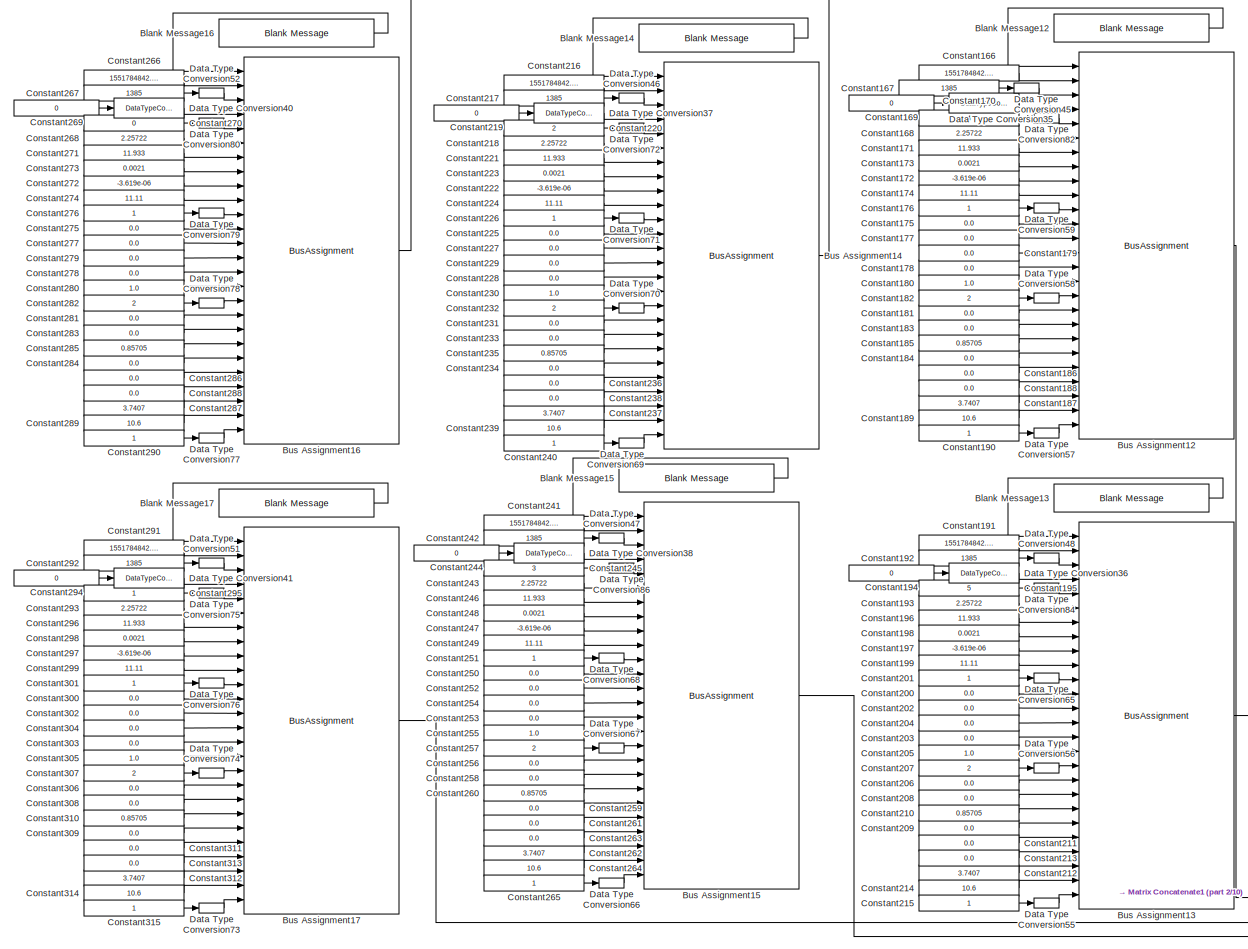
[diagram: root canvas - part 1/10, top left region]
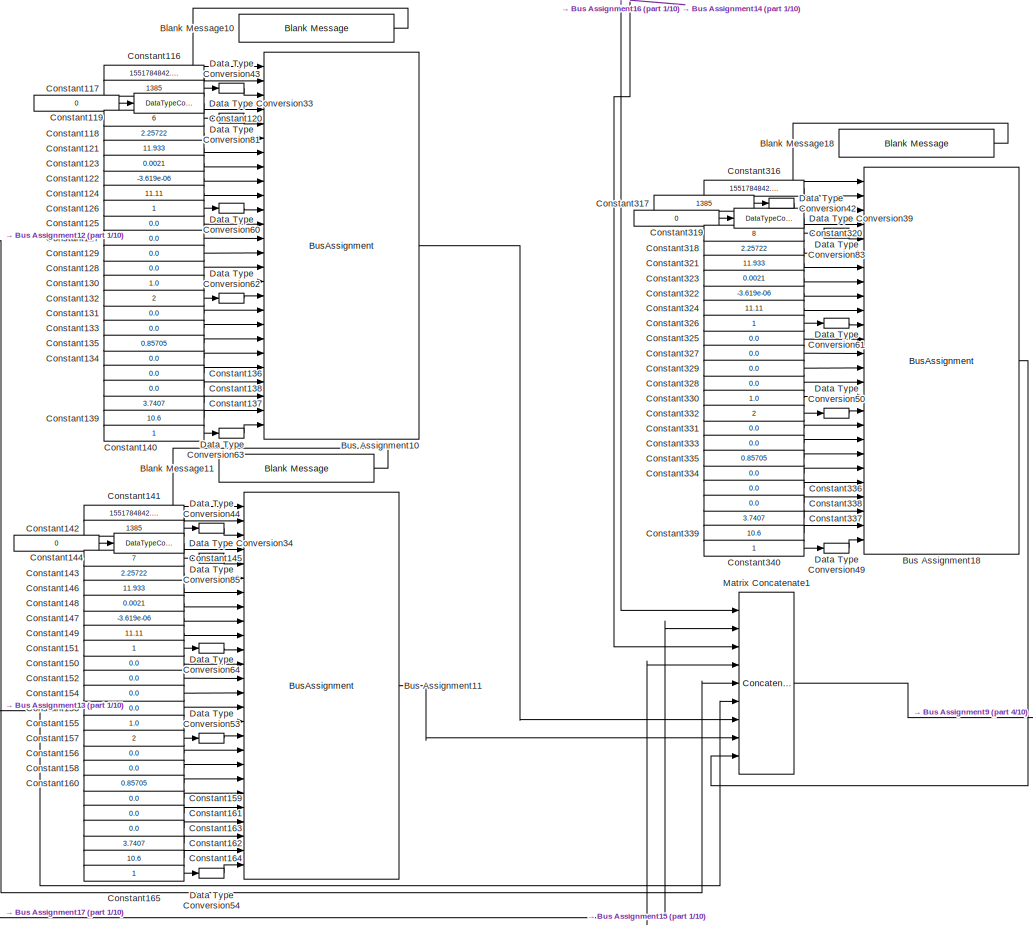
[diagram: root canvas - part 2/10, top center region]
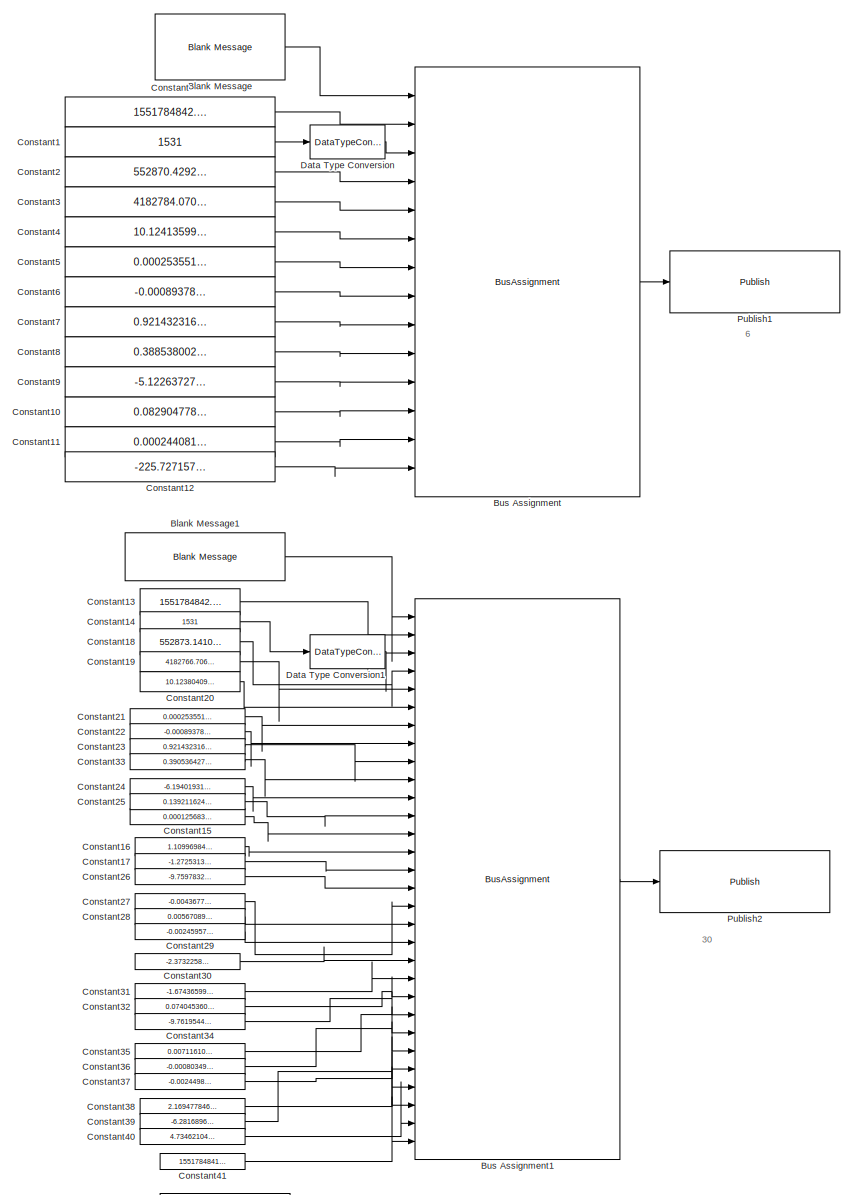
[diagram: root canvas - part 3/10, top right region]
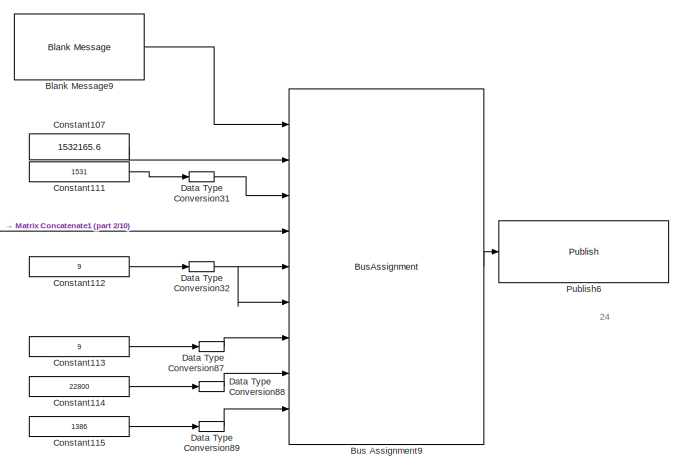
[diagram: root canvas - part 4/10, top center region]
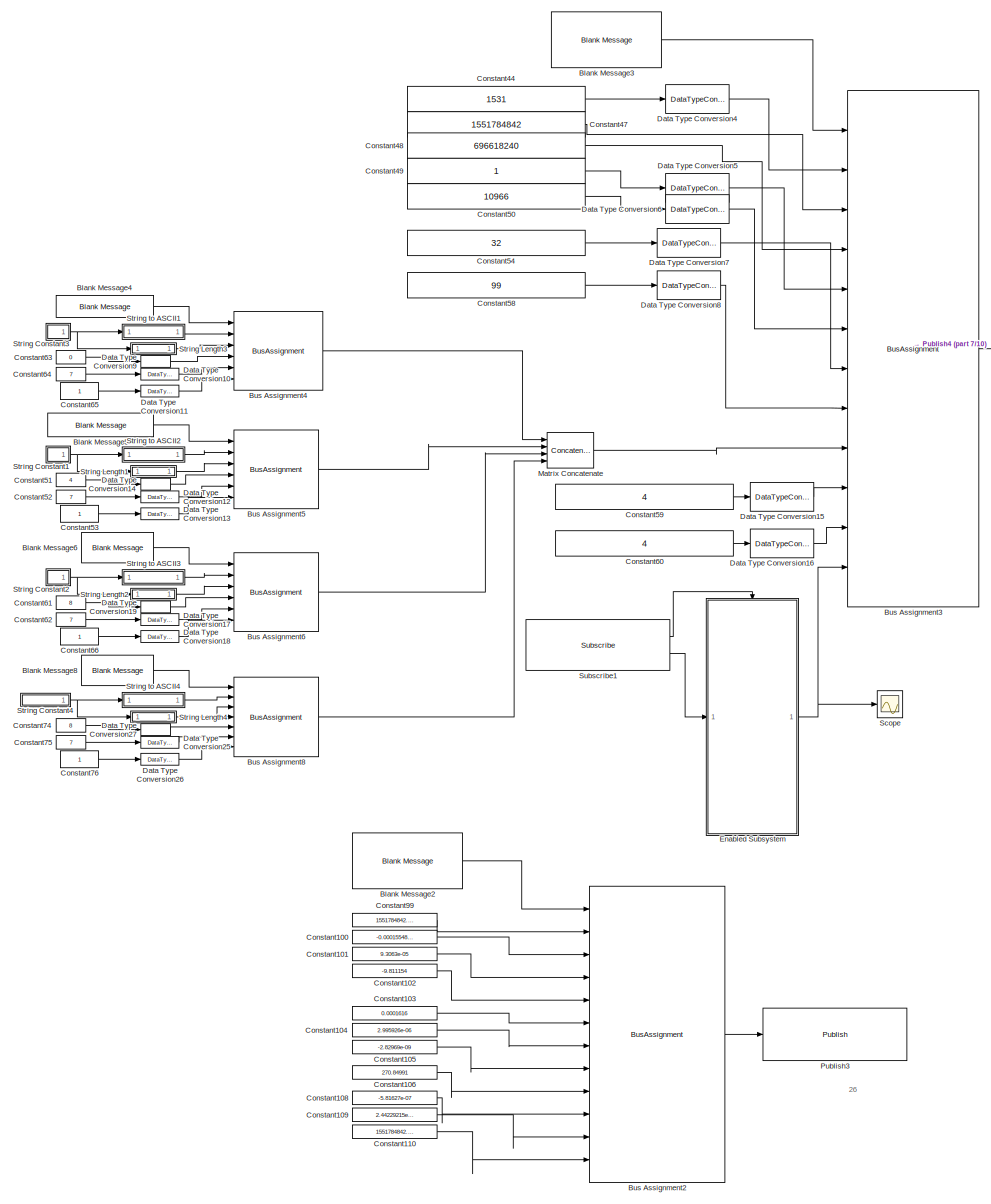
[diagram: root canvas - part 5/10, central region]
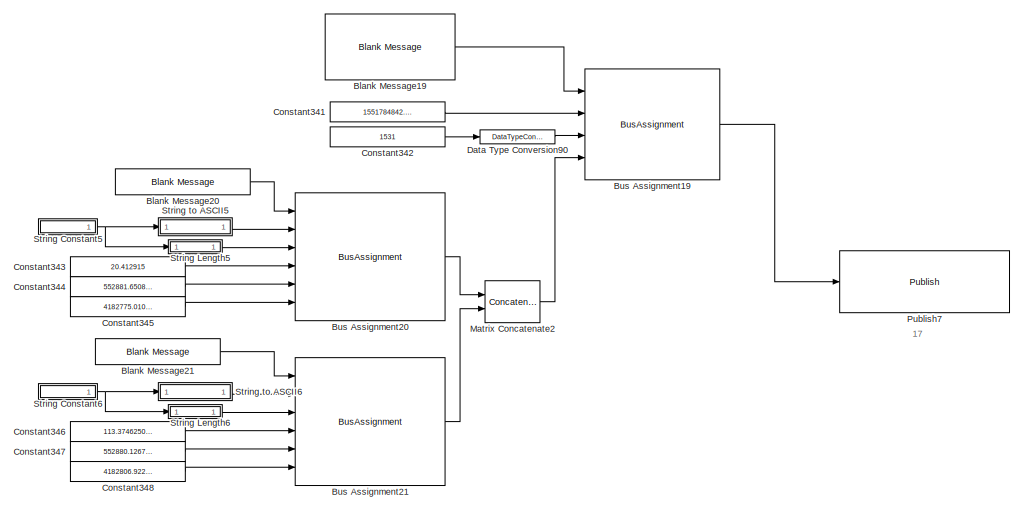
[diagram: root canvas - part 6/10, middle left region]
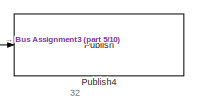
[diagram: root canvas - part 7/10, central region]
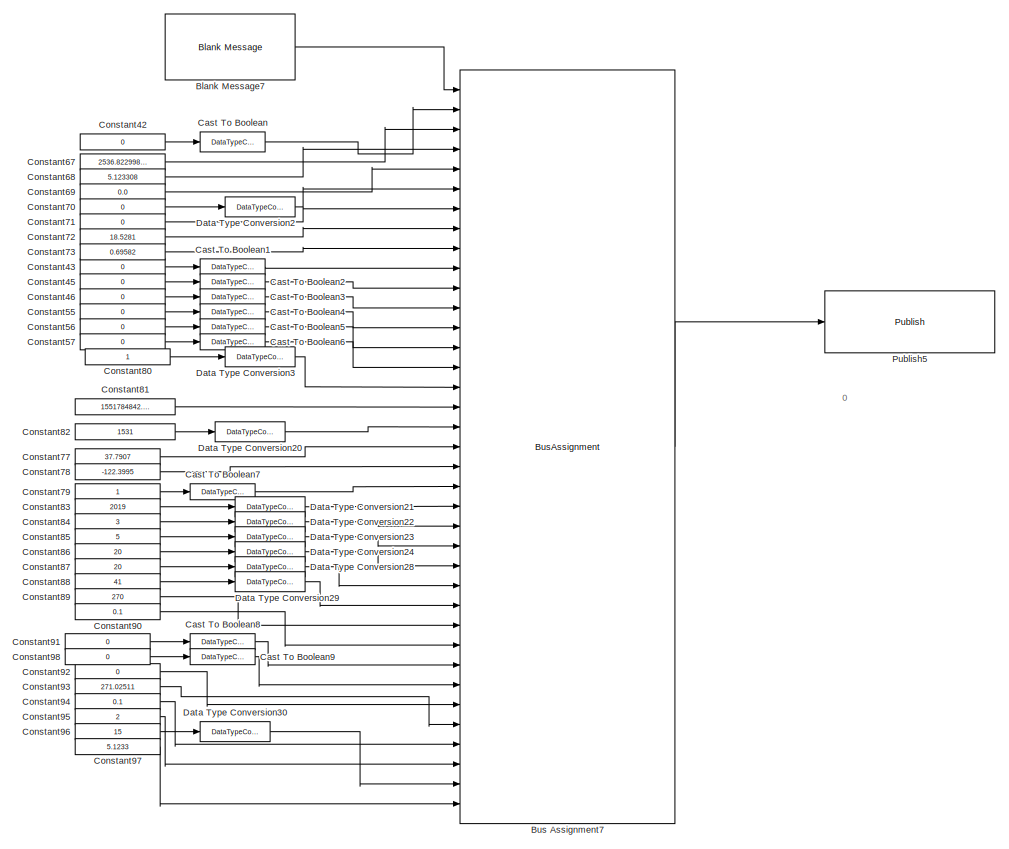
[diagram: root canvas - part 8/10, middle right region]
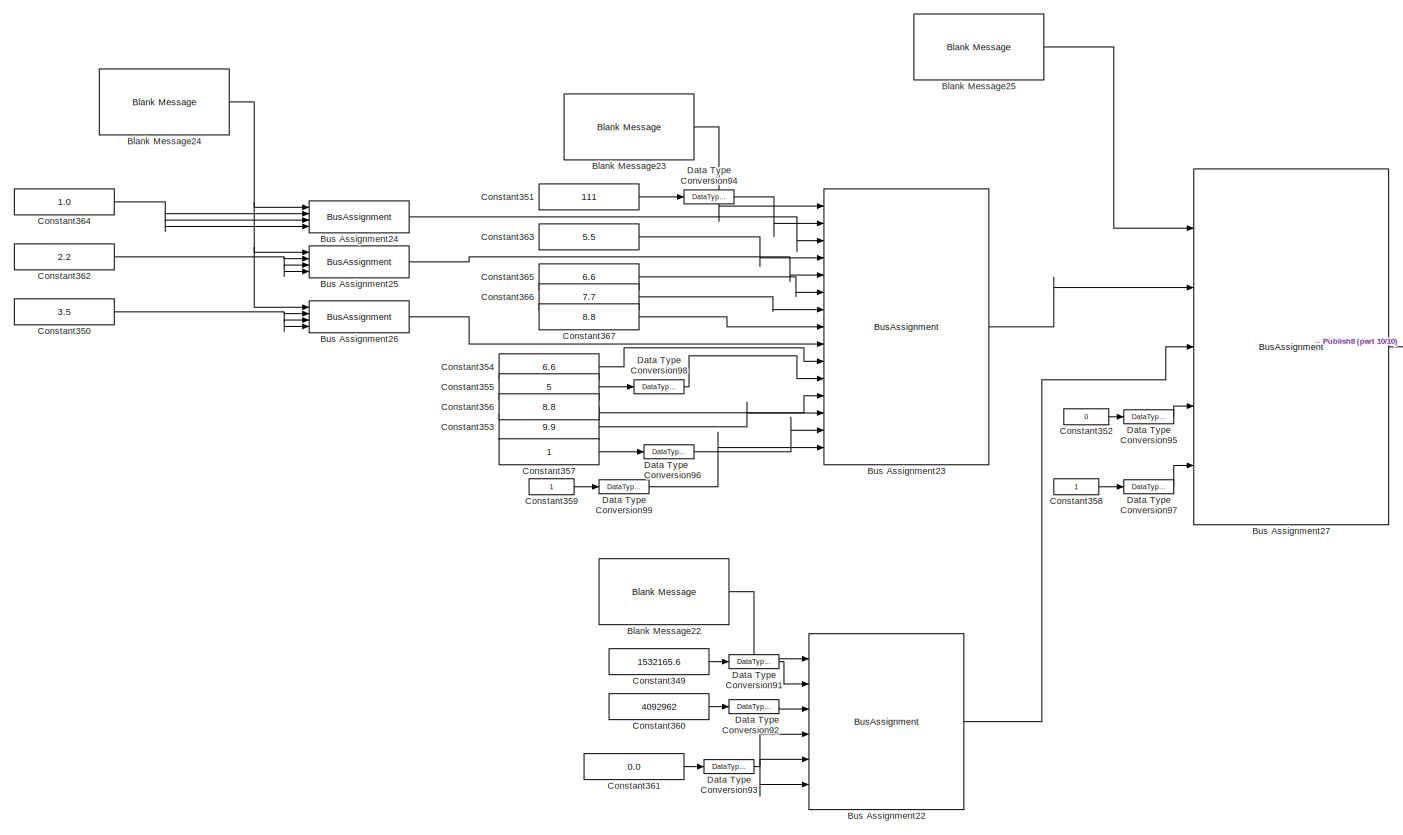
[diagram: root canvas - part 9/10, bottom right region]
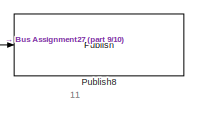
[diagram: root canvas - part 10/10, bottom right region]
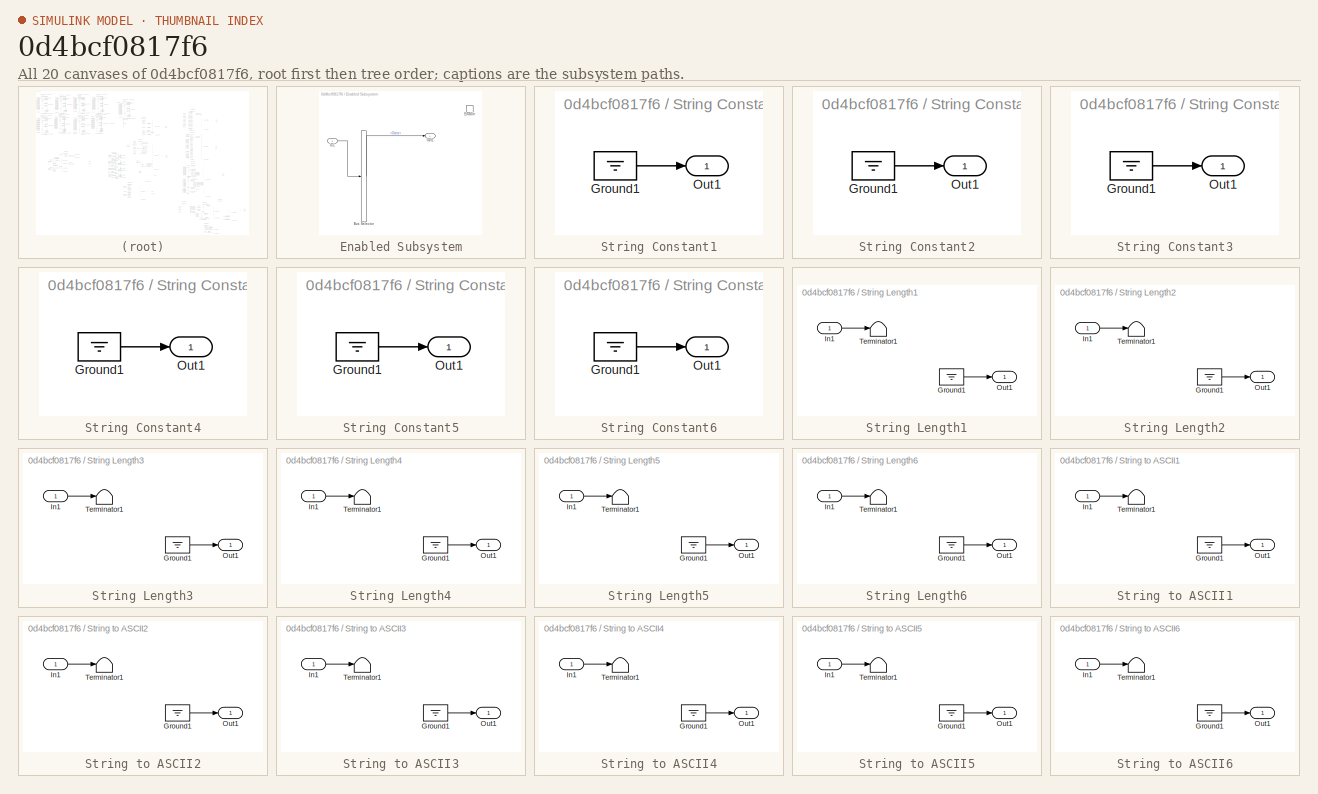
[diagram: thumbnail index - all 20 canvases of the model, root first then tree order]
MODEL slx_0d4bcf0817f6
KIND model
CONFIG AbsTol = auto
CONFIG FixedStep = auto
CONFIG MaxStep = auto
CONFIG MinStep = auto
CONFIG RelTol = 1e-3
CONFIG SampleTimeConstraint = Unconstrained
CONFIG Solver = ode45
CONFIG SolverMode = SingleTasking
CONFIG SolverName = ode45
CONFIG StartTime = 0.0
CONFIG StopTime = inf
WORKSPACE source: MAT-file member
WORKSPACE SL_ROS_VariableLengthArrays_MaxSizes: struct (value not decoded)
BLOCK [Reference] Blank Message  REF=robotlib/Blank Message
  Ports = [0, 1]
  SampleTime = inf
  SourceBlock = robotlib/Blank Message
  SourceType = ROS Blank Message
  entityType = my_msgs/Gps
  messageClass = Message
  messageType = my_msgs/Gps
BLOCK [Reference] Blank Message1  REF=robotlib/Blank Message
  Ports = [0, 1]
  SampleTime = inf
  SourceBlock = robotlib/Blank Message
  SourceType = ROS Blank Message
  entityType = my_msgs/LocalizationEstimate
  messageClass = Message
  messageType = my_msgs/LocalizationEstimate
BLOCK [Reference] Blank Message10  REF=robotlib/Blank Message
  Ports = [0, 1]
  SampleTime = inf
  SourceBlock = robotlib/Blank Message
  SourceType = ROS Blank Message
  entityType = my_msgs/ContiRadarObs
  messageClass = Message
  messageType = my_msgs/ContiRadarObs
BLOCK [Reference] Blank Message11  REF=robotlib/Blank Message
  Ports = [0, 1]
  SampleTime = inf
  SourceBlock = robotlib/Blank Message
  SourceType = ROS Blank Message
  entityType = my_msgs/ContiRadarObs
  messageClass = Message
  messageType = my_msgs/ContiRadarObs
BLOCK [Reference] Blank Message12  REF=robotlib/Blank Message
  Ports = [0, 1]
  SampleTime = inf
  SourceBlock = robotlib/Blank Message
  SourceType = ROS Blank Message
  entityType = my_msgs/ContiRadarObs
  messageClass = Message
  messageType = my_msgs/ContiRadarObs
BLOCK [Reference] Blank Message13  REF=robotlib/Blank Message
  Ports = [0, 1]
  SampleTime = inf
  SourceBlock = robotlib/Blank Message
  SourceType = ROS Blank Message
  entityType = my_msgs/ContiRadarObs
  messageClass = Message
  messageType = my_msgs/ContiRadarObs
BLOCK [Reference] Blank Message14  REF=robotlib/Blank Message
  Ports = [0, 1]
  SampleTime = inf
  SourceBlock = robotlib/Blank Message
  SourceType = ROS Blank Message
  entityType = my_msgs/ContiRadarObs
  messageClass = Message
  messageType = my_msgs/ContiRadarObs
BLOCK [Reference] Blank Message15  REF=robotlib/Blank Message
  Ports = [0, 1]
  SampleTime = inf
  SourceBlock = robotlib/Blank Message
  SourceType = ROS Blank Message
  entityType = my_msgs/ContiRadarObs
  messageClass = Message
  messageType = my_msgs/ContiRadarObs
BLOCK [Reference] Blank Message16  REF=robotlib/Blank Message
  Ports = [0, 1]
  SampleTime = inf
  SourceBlock = robotlib/Blank Message
  SourceType = ROS Blank Message
  entityType = my_msgs/ContiRadarObs
  messageClass = Message
  messageType = my_msgs/ContiRadarObs
BLOCK [Reference] Blank Message17  REF=robotlib/Blank Message
  Ports = [0, 1]
  SampleTime = inf
  SourceBlock = robotlib/Blank Message
  SourceType = ROS Blank Message
  entityType = my_msgs/ContiRadarObs
  messageClass = Message
  messageType = my_msgs/ContiRadarObs
BLOCK [Reference] Blank Message18  REF=robotlib/Blank Message
  Ports = [0, 1]
  SampleTime = inf
  SourceBlock = robotlib/Blank Message
  SourceType = ROS Blank Message
  entityType = my_msgs/ContiRadarObs
  messageClass = Message
  messageType = my_msgs/ContiRadarObs
BLOCK [Reference] Blank Message19  REF=robotlib/Blank Message
  Ports = [0, 1]
  SampleTime = inf
  SourceBlock = robotlib/Blank Message
  SourceType = ROS Blank Message
  entityType = my_msgs/RoutingRequest
  messageClass = Message
  messageType = my_msgs/RoutingRequest
BLOCK [Reference] Blank Message2  REF=robotlib/Blank Message
  Ports = [0, 1]
  SampleTime = inf
  SourceBlock = robotlib/Blank Message
  SourceType = ROS Blank Message
  entityType = my_msgs/CorrectedImu
  messageClass = Message
  messageType = my_msgs/CorrectedImu
BLOCK [Reference] Blank Message20  REF=robotlib/Blank Message
  Ports = [0, 1]
  SampleTime = inf
  SourceBlock = robotlib/Blank Message
  SourceType = ROS Blank Message
  entityType = my_msgs/LaneWayPoint
  messageClass = Message
  messageType = my_msgs/LaneWayPoint
BLOCK [Reference] Blank Message21  REF=robotlib/Blank Message
  Ports = [0, 1]
  SampleTime = inf
  SourceBlock = robotlib/Blank Message
  SourceType = ROS Blank Message
  entityType = my_msgs/LaneWayPoint
  messageClass = Message
  messageType = my_msgs/LaneWayPoint
BLOCK [Reference] Blank Message22  REF=robotlib/Blank Message
  Ports = [0, 1]
  SampleTime = inf
  SourceBlock = robotlib/Blank Message
  SourceType = ROS Blank Message
  entityType = my_msgs/Header
  messageClass = Message
  messageType = my_msgs/Header
BLOCK [Reference] Blank Message23  REF=robotlib/Blank Message
  Ports = [0, 1]
  SampleTime = inf
  SourceBlock = robotlib/Blank Message
  SourceType = ROS Blank Message
  entityType = my_msgs/PerceptionObstacle
  messageClass = Message
  messageType = my_msgs/PerceptionObstacle
BLOCK [Reference] Blank Message24  REF=robotlib/Blank Message
  Ports = [0, 1]
  SampleTime = inf
  SourceBlock = robotlib/Blank Message
  SourceType = ROS Blank Message
  entityType = my_msgs/Point3D
  messageClass = Message
  messageType = my_msgs/Point3D
BLOCK [Reference] Blank Message25  REF=robotlib/Blank Message
  Ports = [0, 1]
  SampleTime = inf
  SourceBlock = robotlib/Blank Message
  SourceType = ROS Blank Message
  entityType = my_msgs/PerceptionObstacles
  messageClass = Message
  messageType = my_msgs/PerceptionObstacles
BLOCK [Reference] Blank Message3  REF=robotlib/Blank Message
  Ports = [0, 1]
  SampleTime = inf
  SourceBlock = robotlib/Blank Message
  SourceType = ROS Blank Message
  entityType = sensor_msgs/PointCloud2
  messageClass = Message
  messageType = sensor_msgs/PointCloud2
BLOCK [Reference] Blank Message4  REF=robotlib/Blank Message
  Ports = [0, 1]
  SampleTime = inf
  SourceBlock = robotlib/Blank Message
  SourceType = ROS Blank Message
  entityType = sensor_msgs/PointField
  messageClass = Message
  messageType = sensor_msgs/PointField
BLOCK [Reference] Blank Message5  REF=robotlib/Blank Message
  Ports = [0, 1]
  SampleTime = inf
  SourceBlock = robotlib/Blank Message
  SourceType = ROS Blank Message
  entityType = sensor_msgs/PointField
  messageClass = Message
  messageType = sensor_msgs/PointField
BLOCK [Reference] Blank Message6  REF=robotlib/Blank Message
  Ports = [0, 1]
  SampleTime = inf
  SourceBlock = robotlib/Blank Message
  SourceType = ROS Blank Message
  entityType = sensor_msgs/PointField
  messageClass = Message
  messageType = sensor_msgs/PointField
BLOCK [Reference] Blank Message7  REF=robotlib/Blank Message
  Ports = [0, 1]
  SampleTime = inf
  SourceBlock = robotlib/Blank Message
  SourceType = ROS Blank Message
  entityType = my_msgs/Chassis
  messageClass = Message
  messageType = my_msgs/Chassis
BLOCK [Reference] Blank Message8  REF=robotlib/Blank Message
  Ports = [0, 1]
  SampleTime = inf
  SourceBlock = robotlib/Blank Message
  SourceType = ROS Blank Message
  entityType = sensor_msgs/PointField
  messageClass = Message
  messageType = sensor_msgs/PointField
BLOCK [Reference] Blank Message9  REF=robotlib/Blank Message
  Ports = [0, 1]
  SampleTime = inf
  SourceBlock = robotlib/Blank Message
  SourceType = ROS Blank Message
  entityType = my_msgs/ContiRadar
  messageClass = Message
  messageType = my_msgs/ContiRadar
BLOCK [BusAssignment] Bus Assignment
  AssignedSignals = Header.TimestampSec,Header.SequenceNum,Localization.Position.X,Localization.Position.Y,Localization.Position.Z,Localization.Orientation.Qx,Localization.Orientation.Qy,Localization.Orientation.Qz,Localization.Orientation.Qw,Localization.LinearVelocity.X,Localization.LinearVelocity.Y,Localization.LinearVelocity.Z,Localization.Heading
  Ports = [14, 1]
BLOCK [BusAssignment] Bus Assignment1
  AssignedSignals = Header.TimestampSec,Header.SequenceNum,Pose.Position.X,Pose.Position.Y,Pose.Position.Z,Pose.Orientation.Qx,Pose.Orientation.Qy,Pose.Orientation.Qz,Pose.Orientation.Qw,Pose.LinearVelocity.X,Pose.LinearVelocity.Y,Pose.LinearVelocity.Z,Pose.LinearAccelration.X,Pose.LinearAccelration.Y,Pose.LinearAccelration.Z,Pose.AngularVelocity.X,Pose.AngularVelocity.Y,Pose.AngularVelocity.Z,Pose.Heading,Pose.Linea...<+239ch>
  Ports = [30, 1]
BLOCK [BusAssignment] Bus Assignment10
  AssignedSignals = Header.TimestampSec,Header.SequenceNum,Clusterortrack,ObstacleId,LongitudeDist,LateralDist,LongitudeVel,LateralVel,Rcs,Dynprop,LongitudeDistRms,LateralDistRms,LongitudeVelRms,LateralVelRms,Probexist,MeasState,LongitudeAccel,LateralAccel,OritationAngle,LongitudeAccelRms,LateralAccelRms,OritationAngleRms,Length,Width,ObstacleClass  <repeated x9 — deduplicated; at blocks: Bus Assignment10, Bus Assignment11, Bus Assignment12, Bus Assignment13, Bus Assignment14, Bus Assignment15, Bus Assignment16, Bus Assignment17, Bus Assignment18>
  Ports = [26, 1]
BLOCK [BusAssignment] Bus Assignment11
  Ports = [26, 1]
BLOCK [BusAssignment] Bus Assignment12
  Ports = [26, 1]
BLOCK [BusAssignment] Bus Assignment13
  Ports = [26, 1]
BLOCK [BusAssignment] Bus Assignment14
  Ports = [26, 1]
BLOCK [BusAssignment] Bus Assignment15
  Ports = [26, 1]
BLOCK [BusAssignment] Bus Assignment16
  Ports = [26, 1]
BLOCK [BusAssignment] Bus Assignment17
  Ports = [26, 1]
BLOCK [BusAssignment] Bus Assignment18
  Ports = [26, 1]
BLOCK [BusAssignment] Bus Assignment19
  AssignedSignals = Header.TimestampSec,Header.SequenceNum,Waypoint
  Ports = [4, 1]
BLOCK [BusAssignment] Bus Assignment2
  AssignedSignals = Header.TimestampSec,Imu.LinearAccelration.X,Imu.LinearAccelration.Y,Imu.LinearAccelration.Z,Imu.AngularVelocity.X,Imu.AngularVelocity.Y,Imu.AngularVelocity.Z,Imu.Heading,Imu.EulerAngles.X,Imu.EulerAngles.Y,Imu.EulerAngles.Z
  Ports = [12, 1]
BLOCK [BusAssignment] Bus Assignment20
  AssignedSignals = Id,Id_SL_Info.CurrentLength,S,Pose.X,Pose.Y
  Ports = [6, 1]
BLOCK [BusAssignment] Bus Assignment21
  AssignedSignals = Id,Id_SL_Info.CurrentLength,S,Pose.X,Pose.Y
  Ports = [6, 1]
BLOCK [BusAssignment] Bus Assignment22
  AssignedSignals = TimestampSec,SequenceNum,LidarTimestamp,CameraTimestamp,RadarTimestamp
  Ports = [6, 1]
BLOCK [BusAssignment] Bus Assignment23
  AssignedSignals = Id,Position,Theta,Velocity,Length,Width,Height,PolygonPoint,TrackingTime,Type,Timestamp,Confidence,ConfidenceType,PolygonPoint_SL_Info.CurrentLength
  Ports = [15, 1]
BLOCK [BusAssignment] Bus Assignment24
  AssignedSignals = X,Y,Z
  Ports = [4, 1]
BLOCK [BusAssignment] Bus Assignment25
  AssignedSignals = X,Y,Z
  Ports = [4, 1]
BLOCK [BusAssignment] Bus Assignment26
  AssignedSignals = X,Y,Z
  Ports = [4, 1]
BLOCK [BusAssignment] Bus Assignment27
  AssignedSignals = PerceptionObstacle,Header,ErrorCode,PerceptionObstacle_SL_Info.CurrentLength
  Ports = [5, 1]
BLOCK [BusAssignment] Bus Assignment3
  AssignedSignals = Header.Seq,Header.Stamp.Sec,Header.Stamp.Nsec,Height,Width,PointStep,RowStep,Fields,Fields_SL_Info.CurrentLength,Fields_SL_Info.ReceivedLength,Data
  Ports = [12, 1]
BLOCK [BusAssignment] Bus Assignment4
  AssignedSignals = Name,Name_SL_Info.CurrentLength,Offset,Datatype,Count
  Ports = [6, 1]
BLOCK [BusAssignment] Bus Assignment5
  AssignedSignals = Name,Name_SL_Info.CurrentLength,Offset,Datatype,Count
  Ports = [6, 1]
BLOCK [BusAssignment] Bus Assignment6
  AssignedSignals = Name,Name_SL_Info.CurrentLength,Offset,Datatype,Count
  Ports = [6, 1]
BLOCK [BusAssignment] Bus Assignment7
  AssignedSignals = EngineStarted,EngineRpm,SpeedMps,OdometerM,FuelRangeM,ThrottlePercentage,BrakePercentage,SteeringPercentage,ParkingBrake,HighBeamSignal,LowBeamSignal,LeftTurnSignal,RightTurnSignal,Wiper,DrivingMode,Header.TimestampSec,Header.SequenceNum,ChassisGps.Latitude,ChassisGps.Longitude,ChassisGps.GpsValid,ChassisGps.Year,ChassisGps.Month,ChassisGps.Day,ChassisGps.Hours,ChassisGps.Minutes,ChassisGps.Second...<+205ch>
  Ports = [37, 1]
BLOCK [BusAssignment] Bus Assignment8
  AssignedSignals = Name,Name_SL_Info.CurrentLength,Name_SL_Info.ReceivedLength,Offset,Datatype,Count
  Ports = [7, 1]
BLOCK [BusAssignment] Bus Assignment9
  AssignedSignals = Header.TimestampSec,Header.SequenceNum,Contiobs,Contiobs_SL_Info.CurrentLength,Contiobs_SL_Info.ReceivedLength,ObjectListStatus.NofObjects,ObjectListStatus.MeasCounter,ObjectListStatus.InterfaceVersion
  Ports = [9, 1]
BLOCK [DataTypeConversion] Cast To Boolean
  OutDataTypeStr = boolean
  RndMeth = Floor
  SaturateOnIntegerOverflow = off
BLOCK [DataTypeConversion] Cast To Boolean1
  OutDataTypeStr = boolean
  RndMeth = Floor
  SaturateOnIntegerOverflow = off
BLOCK [DataTypeConversion] Cast To Boolean2
  OutDataTypeStr = boolean
  RndMeth = Floor
  SaturateOnIntegerOverflow = off
BLOCK [DataTypeConversion] Cast To Boolean3
  OutDataTypeStr = boolean
  RndMeth = Floor
  SaturateOnIntegerOverflow = off
BLOCK [DataTypeConversion] Cast To Boolean4
  OutDataTypeStr = boolean
  RndMeth = Floor
  SaturateOnIntegerOverflow = off
BLOCK [DataTypeConversion] Cast To Boolean5
  OutDataTypeStr = boolean
  RndMeth = Floor
  SaturateOnIntegerOverflow = off
BLOCK [DataTypeConversion] Cast To Boolean6
  OutDataTypeStr = boolean
  RndMeth = Floor
  SaturateOnIntegerOverflow = off
BLOCK [DataTypeConversion] Cast To Boolean7
  OutDataTypeStr = boolean
  RndMeth = Floor
  SaturateOnIntegerOverflow = off
BLOCK [DataTypeConversion] Cast To Boolean8
  OutDataTypeStr = boolean
  RndMeth = Floor
  SaturateOnIntegerOverflow = off
BLOCK [DataTypeConversion] Cast To Boolean9
  OutDataTypeStr = boolean
  RndMeth = Floor
  SaturateOnIntegerOverflow = off
BLOCK [Constant] Constant
  Value = 1551784842.26
BLOCK [Constant] Constant1
  Value = 1531
BLOCK [Constant] Constant10
  Value = 0.0829047784209
BLOCK [Constant] Constant100
  Value = -0.0001554879
BLOCK [Constant] Constant101
  Value = 9.3063e-05
BLOCK [Constant] Constant102
  Value = -9.811154
BLOCK [Constant] Constant103
  Value = 0.0001616
BLOCK [Constant] Constant104
  Value = 2.995926e-06
BLOCK [Constant] Constant105
  Value = -2.82969e-09
BLOCK [Constant] Constant106
  Value = 270.84991
BLOCK [Constant] Constant107
  Value = 1532165.6
BLOCK [Constant] Constant108
  Value = -5.81627e-07
BLOCK [Constant] Constant109
  Value = 2.44229215e-05
BLOCK [Constant] Constant11
  Value = 0.000244081020355
BLOCK [Constant] Constant110
  Value = 1551784842.26
BLOCK [Constant] Constant111
  Value = 1531
BLOCK [Constant] Constant112
  Value = 9
BLOCK [Constant] Constant113
  Value = 9
BLOCK [Constant] Constant114
  Value = 22800
BLOCK [Constant] Constant115
  Value = 1386
BLOCK [Constant] Constant116
  Value = 1551784842.26
BLOCK [Constant] Constant117
  Value = 1385
BLOCK [Constant] Constant118
  Value = 2.25722
BLOCK [Constant] Constant119
  Value = 0
BLOCK [Constant] Constant12
  Value = -225.727157593
BLOCK [Constant] Constant120
  Value = 6
BLOCK [Constant] Constant121
  Value = 11.933
BLOCK [Constant] Constant122
  Value = -3.619e-06
BLOCK [Constant] Constant123
  Value = 0.0021
BLOCK [Constant] Constant124
  Value = 11.11
BLOCK [Constant] Constant125
  Value = 0.0
BLOCK [Constant] Constant126
BLOCK [Constant] Constant127
  Value = 0.0
BLOCK [Constant] Constant128
  Value = 0.0
BLOCK [Constant] Constant129
  Value = 0.0
BLOCK [Constant] Constant13
  Value = 1551784842.26
BLOCK [Constant] Constant130
  Value = 1.0
BLOCK [Constant] Constant131
  Value = 0.0
BLOCK [Constant] Constant132
  Value = 2
BLOCK [Constant] Constant133
  Value = 0.0
BLOCK [Constant] Constant134
  Value = 0.0
BLOCK [Constant] Constant135
  Value = 0.85705
BLOCK [Constant] Constant136
  Value = 0.0
BLOCK [Constant] Constant137
  Value = 3.7407
BLOCK [Constant] Constant138
  Value = 0.0
BLOCK [Constant] Constant139
  Value = 10.6
BLOCK [Constant] Constant14
  Value = 1531
BLOCK [Constant] Constant140
BLOCK [Constant] Constant141
  Value = 1551784842.26
BLOCK [Constant] Constant142
  Value = 1385
BLOCK [Constant] Constant143
  Value = 2.25722
BLOCK [Constant] Constant144
  Value = 0
BLOCK [Constant] Constant145
  Value = 7
BLOCK [Constant] Constant146
  Value = 11.933
BLOCK [Constant] Constant147
  Value = -3.619e-06
BLOCK [Constant] Constant148
  Value = 0.0021
BLOCK [Constant] Constant149
  Value = 11.11
BLOCK [Constant] Constant15
  Value = 0.00012568384409
BLOCK [Constant] Constant150
  Value = 0.0
BLOCK [Constant] Constant151
BLOCK [Constant] Constant152
  Value = 0.0
BLOCK [Constant] Constant153
  Value = 0.0
BLOCK [Constant] Constant154
  Value = 0.0
BLOCK [Constant] Constant155
  Value = 1.0
BLOCK [Constant] Constant156
  Value = 0.0
BLOCK [Constant] Constant157
  Value = 2
BLOCK [Constant] Constant158
  Value = 0.0
BLOCK [Constant] Constant159
  Value = 0.0
BLOCK [Constant] Constant16
  Value = 1.10996984434
BLOCK [Constant] Constant160
  Value = 0.85705
BLOCK [Constant] Constant161
  Value = 0.0
BLOCK [Constant] Constant162
  Value = 3.7407
BLOCK [Constant] Constant163
  Value = 0.0
BLOCK [Constant] Constant164
  Value = 10.6
BLOCK [Constant] Constant165
BLOCK [Constant] Constant166
  Value = 1551784842.26
BLOCK [Constant] Constant167
  Value = 1385
BLOCK [Constant] Constant168
  Value = 2.25722
BLOCK [Constant] Constant169
  Value = 0
BLOCK [Constant] Constant17
  Value = -1.27253139942
BLOCK [Constant] Constant170
  Value = 4
BLOCK [Constant] Constant171
  Value = 11.933
BLOCK [Constant] Constant172
  Value = -3.619e-06
BLOCK [Constant] Constant173
  Value = 0.0021
BLOCK [Constant] Constant174
  Value = 11.11
BLOCK [Constant] Constant175
  Value = 0.0
BLOCK [Constant] Constant176
BLOCK [Constant] Constant177
  Value = 0.0
BLOCK [Constant] Constant178
  Value = 0.0
BLOCK [Constant] Constant179
  Value = 0.0
BLOCK [Constant] Constant18
  Value = 552873.141037
BLOCK [Constant] Constant180
  Value = 1.0
BLOCK [Constant] Constant181
  Value = 0.0
BLOCK [Constant] Constant182
  Value = 2
BLOCK [Constant] Constant183
  Value = 0.0
BLOCK [Constant] Constant184
  Value = 0.0
BLOCK [Constant] Constant185
  Value = 0.85705
BLOCK [Constant] Constant186
  Value = 0.0
BLOCK [Constant] Constant187
  Value = 3.7407
BLOCK [Constant] Constant188
  Value = 0.0
BLOCK [Constant] Constant189
  Value = 10.6
BLOCK [Constant] Constant19
  Value = 4182766.70679
BLOCK [Constant] Constant190
BLOCK [Constant] Constant191
  Value = 1551784842.26
BLOCK [Constant] Constant192
  Value = 1385
BLOCK [Constant] Constant193
  Value = 2.25722
BLOCK [Constant] Constant194
  Value = 0
BLOCK [Constant] Constant195
  Value = 5
BLOCK [Constant] Constant196
  Value = 11.933
BLOCK [Constant] Constant197
  Value = -3.619e-06
BLOCK [Constant] Constant198
  Value = 0.0021
BLOCK [Constant] Constant199
  Value = 11.11
BLOCK [Constant] Constant2
  Value = 552870.429222
BLOCK [Constant] Constant20
  Value = 10.1238040924
BLOCK [Constant] Constant200
  Value = 0.0
BLOCK [Constant] Constant201
BLOCK [Constant] Constant202
  Value = 0.0
BLOCK [Constant] Constant203
  Value = 0.0
BLOCK [Constant] Constant204
  Value = 0.0
BLOCK [Constant] Constant205
  Value = 1.0
BLOCK [Constant] Constant206
  Value = 0.0
BLOCK [Constant] Constant207
  Value = 2
BLOCK [Constant] Constant208
  Value = 0.0
BLOCK [Constant] Constant209
  Value = 0.0
BLOCK [Constant] Constant21
  Value = 0.000253551552305
BLOCK [Constant] Constant210
  Value = 0.85705
BLOCK [Constant] Constant211
  Value = 0.0
BLOCK [Constant] Constant212
  Value = 3.7407
BLOCK [Constant] Constant213
  Value = 0.0
BLOCK [Constant] Constant214
  Value = 10.6
BLOCK [Constant] Constant215
BLOCK [Constant] Constant216
  Value = 1551784842.26
BLOCK [Constant] Constant217
  Value = 1385
BLOCK [Constant] Constant218
  Value = 2.25722
BLOCK [Constant] Constant219
  Value = 0
BLOCK [Constant] Constant22
  Value = -0.000893782998901
BLOCK [Constant] Constant220
  Value = 2
BLOCK [Constant] Constant221
  Value = 11.933
BLOCK [Constant] Constant222
  Value = -3.619e-06
BLOCK [Constant] Constant223
  Value = 0.0021
BLOCK [Constant] Constant224
  Value = 11.11
BLOCK [Constant] Constant225
  Value = 0.0
BLOCK [Constant] Constant226
BLOCK [Constant] Constant227
  Value = 0.0
BLOCK [Constant] Constant228
  Value = 0.0
BLOCK [Constant] Constant229
  Value = 0.0
BLOCK [Constant] Constant23
  Value = 0.921432316303
BLOCK [Constant] Constant230
  Value = 1.0
BLOCK [Constant] Constant231
  Value = 0.0
BLOCK [Constant] Constant232
  Value = 2
BLOCK [Constant] Constant233
  Value = 0.0
BLOCK [Constant] Constant234
  Value = 0.0
BLOCK [Constant] Constant235
  Value = 0.85705
BLOCK [Constant] Constant236
  Value = 0.0
BLOCK [Constant] Constant237
  Value = 3.7407
BLOCK [Constant] Constant238
  Value = 0.0
BLOCK [Constant] Constant239
  Value = 10.6
BLOCK [Constant] Constant24
  Value = -6.19401931763
BLOCK [Constant] Constant240
BLOCK [Constant] Constant241
  Value = 1551784842.26
BLOCK [Constant] Constant242
  Value = 1385
BLOCK [Constant] Constant243
  Value = 2.25722
BLOCK [Constant] Constant244
  Value = 0
BLOCK [Constant] Constant245
  Value = 3
BLOCK [Constant] Constant246
  Value = 11.933
BLOCK [Constant] Constant247
  Value = -3.619e-06
BLOCK [Constant] Constant248
  Value = 0.0021
BLOCK [Constant] Constant249
  Value = 11.11
BLOCK [Constant] Constant25
  Value = 0.139211624861
BLOCK [Constant] Constant250
  Value = 0.0
BLOCK [Constant] Constant251
BLOCK [Constant] Constant252
  Value = 0.0
BLOCK [Constant] Constant253
  Value = 0.0
BLOCK [Constant] Constant254
  Value = 0.0
BLOCK [Constant] Constant255
  Value = 1.0
BLOCK [Constant] Constant256
  Value = 0.0
BLOCK [Constant] Constant257
  Value = 2
BLOCK [Constant] Constant258
  Value = 0.0
BLOCK [Constant] Constant259
  Value = 0.0
BLOCK [Constant] Constant26
  Value = -9.75978325506
BLOCK [Constant] Constant260
  Value = 0.85705
BLOCK [Constant] Constant261
  Value = 0.0
BLOCK [Constant] Constant262
  Value = 3.7407
BLOCK [Constant] Constant263
  Value = 0.0
BLOCK [Constant] Constant264
  Value = 10.6
BLOCK [Constant] Constant265
BLOCK [Constant] Constant266
  Value = 1551784842.26
BLOCK [Constant] Constant267
  Value = 1385
BLOCK [Constant] Constant268
  Value = 2.25722
BLOCK [Constant] Constant269
  Value = 0
BLOCK [Constant] Constant27
  Value = -0.0043677779987
BLOCK [Constant] Constant270
  Value = 0
BLOCK [Constant] Constant271
  Value = 11.933
BLOCK [Constant] Constant272
  Value = -3.619e-06
BLOCK [Constant] Constant273
  Value = 0.0021
BLOCK [Constant] Constant274
  Value = 11.11
BLOCK [Constant] Constant275
  Value = 0.0
BLOCK [Constant] Constant276
BLOCK [Constant] Constant277
  Value = 0.0
BLOCK [Constant] Constant278
  Value = 0.0
BLOCK [Constant] Constant279
  Value = 0.0
BLOCK [Constant] Constant28
  Value = 0.00567089976961
BLOCK [Constant] Constant280
  Value = 1.0
BLOCK [Constant] Constant281
  Value = 0.0
BLOCK [Constant] Constant282
  Value = 2
BLOCK [Constant] Constant283
  Value = 0.0
BLOCK [Constant] Constant284
  Value = 0.0
BLOCK [Constant] Constant285
  Value = 0.85705
BLOCK [Constant] Constant286
  Value = 0.0
BLOCK [Constant] Constant287
  Value = 3.7407
BLOCK [Constant] Constant288
  Value = 0.0
BLOCK [Constant] Constant289
  Value = 10.6
BLOCK [Constant] Constant29
  Value = -0.0024595711077
BLOCK [Constant] Constant290
BLOCK [Constant] Constant291
  Value = 1551784842.26
BLOCK [Constant] Constant292
  Value = 1385
BLOCK [Constant] Constant293
  Value = 2.25722
BLOCK [Constant] Constant294
  Value = 0
BLOCK [Constant] Constant295
BLOCK [Constant] Constant296
  Value = 11.933
BLOCK [Constant] Constant297
  Value = -3.619e-06
BLOCK [Constant] Constant298
  Value = 0.0021
BLOCK [Constant] Constant299
  Value = 11.11
BLOCK [Constant] Constant3
  Value = 4182784.07053
BLOCK [Constant] Constant30
  Value = -2.37322587092
BLOCK [Constant] Constant300
  Value = 0.0
BLOCK [Constant] Constant301
BLOCK [Constant] Constant302
  Value = 0.0
BLOCK [Constant] Constant303
  Value = 0.0
BLOCK [Constant] Constant304
  Value = 0.0
BLOCK [Constant] Constant305
  Value = 1.0
BLOCK [Constant] Constant306
  Value = 0.0
BLOCK [Constant] Constant307
  Value = 2
BLOCK [Constant] Constant308
  Value = 0.0
BLOCK [Constant] Constant309
  Value = 0.0
BLOCK [Constant] Constant31
  Value = -1.67436599731
BLOCK [Constant] Constant310
  Value = 0.85705
BLOCK [Constant] Constant311
  Value = 0.0
BLOCK [Constant] Constant312
  Value = 3.7407
BLOCK [Constant] Constant313
  Value = 0.0
BLOCK [Constant] Constant314
  Value = 10.6
BLOCK [Constant] Constant315
BLOCK [Constant] Constant316
  Value = 1551784842.26
BLOCK [Constant] Constant317
  Value = 1385
BLOCK [Constant] Constant318
  Value = 2.25722
BLOCK [Constant] Constant319
  Value = 0
BLOCK [Constant] Constant32
  Value = 0.0740453600883
BLOCK [Constant] Constant320
  Value = 8
BLOCK [Constant] Constant321
  Value = 11.933
BLOCK [Constant] Constant322
  Value = -3.619e-06
BLOCK [Constant] Constant323
  Value = 0.0021
BLOCK [Constant] Constant324
  Value = 11.11
BLOCK [Constant] Constant325
  Value = 0.0
BLOCK [Constant] Constant326
BLOCK [Constant] Constant327
  Value = 0.0
BLOCK [Constant] Constant328
  Value = 0.0
BLOCK [Constant] Constant329
  Value = 0.0
BLOCK [Constant] Constant33
  Value = 0.390536427498
BLOCK [Constant] Constant330
  Value = 1.0
BLOCK [Constant] Constant331
  Value = 0.0
BLOCK [Constant] Constant332
  Value = 2
BLOCK [Constant] Constant333
  Value = 0.0
BLOCK [Constant] Constant334
  Value = 0.0
BLOCK [Constant] Constant335
  Value = 0.85705
BLOCK [Constant] Constant336
  Value = 0.0
BLOCK [Constant] Constant337
  Value = 3.7407
BLOCK [Constant] Constant338
  Value = 0.0
BLOCK [Constant] Constant339
  Value = 10.6
BLOCK [Constant] Constant34
  Value = -9.76195441931
BLOCK [Constant] Constant340
BLOCK [Constant] Constant341
  Value = 1551784842.26
BLOCK [Constant] Constant342
  Value = 1531
BLOCK [Constant] Constant343
  Value = 20.412915
BLOCK [Constant] Constant344
  Value = 552881.650878
BLOCK [Constant] Constant345
  Value = 4182775.01019
BLOCK [Constant] Constant346
  Value = 113.374625055
BLOCK [Constant] Constant347
  Value = 552880.126721
BLOCK [Constant] Constant348
  Value = 4182806.92204
BLOCK [Constant] Constant349
  Value = 1532165.6
BLOCK [Constant] Constant35
  Value = 0.00711610494182
BLOCK [Constant] Constant350
  Value = 3.5
BLOCK [Constant] Constant351
  Value = 111
BLOCK [Constant] Constant352
  Value = 0
BLOCK [Constant] Constant353
  Value = 9.9
BLOCK [Constant] Constant354
  Value = 6.6
BLOCK [Constant] Constant355
  Value = 5
BLOCK [Constant] Constant356
  Value = 8.8
BLOCK [Constant] Constant357
BLOCK [Constant] Constant358
BLOCK [Constant] Constant359
BLOCK [Constant] Constant36
  Value = -0.000803495408036
BLOCK [Constant] Constant360
  Value = 4092962
BLOCK [Constant] Constant361
  Value = 0.0
BLOCK [Constant] Constant362
  Value = 2.2
BLOCK [Constant] Constant363
  Value = 5.5
BLOCK [Constant] Constant364
  Value = 1.0
BLOCK [Constant] Constant365
  Value = 6.6
BLOCK [Constant] Constant366
  Value = 7.7
BLOCK [Constant] Constant367
  Value = 8.8
BLOCK [Constant] Constant37
  Value = -0.0024498004932
BLOCK [Constant] Constant38
  Value = 2.16947784683e-05
BLOCK [Constant] Constant39
  Value = -6.28168967593
BLOCK [Constant] Constant4
  Value = 10.1241359982
BLOCK [Constant] Constant40
  Value = 4.73462104918
BLOCK [Constant] Constant41
  Value = 1551784841.11
BLOCK [Constant] Constant42
  Value = 0
BLOCK [Constant] Constant43
  Value = 0
BLOCK [Constant] Constant44
  Value = 1531
BLOCK [Constant] Constant45
  Value = 0
BLOCK [Constant] Constant46
  Value = 0
BLOCK [Constant] Constant47
  Value = 1551784842
BLOCK [Constant] Constant48
  Value = 696618240
BLOCK [Constant] Constant49
BLOCK [Constant] Constant5
  Value = 0.000253551552305
BLOCK [Constant] Constant50
  Value = 10966
BLOCK [Constant] Constant51
  Value = 4
BLOCK [Constant] Constant52
  Value = 7
BLOCK [Constant] Constant53
BLOCK [Constant] Constant54
  Value = 32
BLOCK [Constant] Constant55
  Value = 0
BLOCK [Constant] Constant56
  Value = 0
BLOCK [Constant] Constant57
  Value = 0
BLOCK [Constant] Constant58
  Value = 99
BLOCK [Constant] Constant59
  Value = 4
BLOCK [Constant] Constant6
  Value = -0.000893782998901
BLOCK [Constant] Constant60
  Value = 4
BLOCK [Constant] Constant61
  Value = 8
BLOCK [Constant] Constant62
  Value = 7
BLOCK [Constant] Constant63
  Value = 0
BLOCK [Constant] Constant64
  Value = 7
BLOCK [Constant] Constant65
BLOCK [Constant] Constant66
BLOCK [Constant] Constant67
  Value = 2536.82299805
BLOCK [Constant] Constant68
  Value = 5.123308
BLOCK [Constant] Constant69
  Value = 0.0
BLOCK [Constant] Constant7
  Value = 0.921432316303
BLOCK [Constant] Constant70
  Value = 0
BLOCK [Constant] Constant71
  Value = 0
BLOCK [Constant] Constant72
  Value = 18.5281
BLOCK [Constant] Constant73
  Value = 0.69582
BLOCK [Constant] Constant74
  Value = 8
BLOCK [Constant] Constant75
  Value = 7
BLOCK [Constant] Constant76
BLOCK [Constant] Constant77
  Value = 37.7907
BLOCK [Constant] Constant78
  Value = -122.3995
BLOCK [Constant] Constant79
BLOCK [Constant] Constant8
  Value = 0.388538002968
BLOCK [Constant] Constant80
BLOCK [Constant] Constant81
  Value = 1551784842.26
BLOCK [Constant] Constant82
  Value = 1531
BLOCK [Constant] Constant83
  Value = 2019
BLOCK [Constant] Constant84
  Value = 3
BLOCK [Constant] Constant85
  Value = 5
BLOCK [Constant] Constant86
  Value = 20
BLOCK [Constant] Constant87
  Value = 20
BLOCK [Constant] Constant88
  Value = 41
BLOCK [Constant] Constant89
  Value = 270
BLOCK [Constant] Constant9
  Value = -5.12263727188
BLOCK [Constant] Constant90
  Value = 0.1
BLOCK [Constant] Constant91
  Value = 0
BLOCK [Constant] Constant92
  Value = 0
BLOCK [Constant] Constant93
  Value = 271.02511
BLOCK [Constant] Constant94
  Value = 0.1
BLOCK [Constant] Constant95
  Value = 2
BLOCK [Constant] Constant96
  Value = 15
BLOCK [Constant] Constant97
  Value = 5.1233
BLOCK [Constant] Constant98
  Value = 0
BLOCK [Constant] Constant99
  Value = 1551784842.26
BLOCK [DataTypeConversion] Data Type Conversion
  RndMeth = Floor
  SaturateOnIntegerOverflow = off
BLOCK [DataTypeConversion] Data Type Conversion1
  RndMeth = Floor
  SaturateOnIntegerOverflow = off
BLOCK [DataTypeConversion] Data Type Conversion10
  RndMeth = Floor
  SaturateOnIntegerOverflow = off
BLOCK [DataTypeConversion] Data Type Conversion11
  RndMeth = Floor
  SaturateOnIntegerOverflow = off
BLOCK [DataTypeConversion] Data Type Conversion12
  RndMeth = Floor
  SaturateOnIntegerOverflow = off
BLOCK [DataTypeConversion] Data Type Conversion13
  RndMeth = Floor
  SaturateOnIntegerOverflow = off
BLOCK [DataTypeConversion] Data Type Conversion14
  RndMeth = Floor
  SaturateOnIntegerOverflow = off
BLOCK [DataTypeConversion] Data Type Conversion15
  RndMeth = Floor
  SaturateOnIntegerOverflow = off
BLOCK [DataTypeConversion] Data Type Conversion16
  RndMeth = Floor
  SaturateOnIntegerOverflow = off
BLOCK [DataTypeConversion] Data Type Conversion17
  RndMeth = Floor
  SaturateOnIntegerOverflow = off
BLOCK [DataTypeConversion] Data Type Conversion18
  RndMeth = Floor
  SaturateOnIntegerOverflow = off
BLOCK [DataTypeConversion] Data Type Conversion19
  RndMeth = Floor
  SaturateOnIntegerOverflow = off
BLOCK [DataTypeConversion] Data Type Conversion2
  RndMeth = Floor
  SaturateOnIntegerOverflow = off
BLOCK [DataTypeConversion] Data Type Conversion20
  RndMeth = Floor
  SaturateOnIntegerOverflow = off
BLOCK [DataTypeConversion] Data Type Conversion21
  RndMeth = Floor
  SaturateOnIntegerOverflow = off
BLOCK [DataTypeConversion] Data Type Conversion22
  RndMeth = Floor
  SaturateOnIntegerOverflow = off
BLOCK [DataTypeConversion] Data Type Conversion23
  RndMeth = Floor
  SaturateOnIntegerOverflow = off
BLOCK [DataTypeConversion] Data Type Conversion24
  RndMeth = Floor
  SaturateOnIntegerOverflow = off
BLOCK [DataTypeConversion] Data Type Conversion25
  RndMeth = Floor
  SaturateOnIntegerOverflow = off
BLOCK [DataTypeConversion] Data Type Conversion26
  RndMeth = Floor
  SaturateOnIntegerOverflow = off
BLOCK [DataTypeConversion] Data Type Conversion27
  RndMeth = Floor
  SaturateOnIntegerOverflow = off
BLOCK [DataTypeConversion] Data Type Conversion28
  RndMeth = Floor
  SaturateOnIntegerOverflow = off
BLOCK [DataTypeConversion] Data Type Conversion29
  RndMeth = Floor
  SaturateOnIntegerOverflow = off
BLOCK [DataTypeConversion] Data Type Conversion3
  RndMeth = Floor
  SaturateOnIntegerOverflow = off
BLOCK [DataTypeConversion] Data Type Conversion30
  RndMeth = Floor
  SaturateOnIntegerOverflow = off
BLOCK [DataTypeConversion] Data Type Conversion31
  RndMeth = Floor
  SaturateOnIntegerOverflow = off
BLOCK [DataTypeConversion] Data Type Conversion32
  RndMeth = Floor
  SaturateOnIntegerOverflow = off
BLOCK [DataTypeConversion] Data Type Conversion33
  RndMeth = Floor
  SaturateOnIntegerOverflow = off
BLOCK [DataTypeConversion] Data Type Conversion34
  RndMeth = Floor
  SaturateOnIntegerOverflow = off
BLOCK [DataTypeConversion] Data Type Conversion35
  RndMeth = Floor
  SaturateOnIntegerOverflow = off
BLOCK [DataTypeConversion] Data Type Conversion36
  RndMeth = Floor
  SaturateOnIntegerOverflow = off
BLOCK [DataTypeConversion] Data Type Conversion37
  RndMeth = Floor
  SaturateOnIntegerOverflow = off
BLOCK [DataTypeConversion] Data Type Conversion38
  RndMeth = Floor
  SaturateOnIntegerOverflow = off
BLOCK [DataTypeConversion] Data Type Conversion39
  RndMeth = Floor
  SaturateOnIntegerOverflow = off
BLOCK [DataTypeConversion] Data Type Conversion4
  RndMeth = Floor
  SaturateOnIntegerOverflow = off
BLOCK [DataTypeConversion] Data Type Conversion40
  RndMeth = Floor
  SaturateOnIntegerOverflow = off
BLOCK [DataTypeConversion] Data Type Conversion41
  RndMeth = Floor
  SaturateOnIntegerOverflow = off
BLOCK [DataTypeConversion] Data Type Conversion42
  RndMeth = Floor
  SaturateOnIntegerOverflow = off
BLOCK [DataTypeConversion] Data Type Conversion43
  RndMeth = Floor
  SaturateOnIntegerOverflow = off
BLOCK [DataTypeConversion] Data Type Conversion44
  RndMeth = Floor
  SaturateOnIntegerOverflow = off
BLOCK [DataTypeConversion] Data Type Conversion45
  RndMeth = Floor
  SaturateOnIntegerOverflow = off
BLOCK [DataTypeConversion] Data Type Conversion46
  RndMeth = Floor
  SaturateOnIntegerOverflow = off
BLOCK [DataTypeConversion] Data Type Conversion47
  RndMeth = Floor
  SaturateOnIntegerOverflow = off
BLOCK [DataTypeConversion] Data Type Conversion48
  RndMeth = Floor
  SaturateOnIntegerOverflow = off
BLOCK [DataTypeConversion] Data Type Conversion49
  RndMeth = Floor
  SaturateOnIntegerOverflow = off
BLOCK [DataTypeConversion] Data Type Conversion5
  RndMeth = Floor
  SaturateOnIntegerOverflow = off
BLOCK [DataTypeConversion] Data Type Conversion50
  RndMeth = Floor
  SaturateOnIntegerOverflow = off
BLOCK [DataTypeConversion] Data Type Conversion51
  RndMeth = Floor
  SaturateOnIntegerOverflow = off
BLOCK [DataTypeConversion] Data Type Conversion52
  RndMeth = Floor
  SaturateOnIntegerOverflow = off
BLOCK [DataTypeConversion] Data Type Conversion53
  RndMeth = Floor
  SaturateOnIntegerOverflow = off
BLOCK [DataTypeConversion] Data Type Conversion54
  RndMeth = Floor
  SaturateOnIntegerOverflow = off
BLOCK [DataTypeConversion] Data Type Conversion55
  RndMeth = Floor
  SaturateOnIntegerOverflow = off
BLOCK [DataTypeConversion] Data Type Conversion56
  RndMeth = Floor
  SaturateOnIntegerOverflow = off
BLOCK [DataTypeConversion] Data Type Conversion57
  RndMeth = Floor
  SaturateOnIntegerOverflow = off
BLOCK [DataTypeConversion] Data Type Conversion58
  RndMeth = Floor
  SaturateOnIntegerOverflow = off
BLOCK [DataTypeConversion] Data Type Conversion59
  RndMeth = Floor
  SaturateOnIntegerOverflow = off
BLOCK [DataTypeConversion] Data Type Conversion6
  RndMeth = Floor
  SaturateOnIntegerOverflow = off
BLOCK [DataTypeConversion] Data Type Conversion60
  RndMeth = Floor
  SaturateOnIntegerOverflow = off
BLOCK [DataTypeConversion] Data Type Conversion61
  RndMeth = Floor
  SaturateOnIntegerOverflow = off
BLOCK [DataTypeConversion] Data Type Conversion62
  RndMeth = Floor
  SaturateOnIntegerOverflow = off
BLOCK [DataTypeConversion] Data Type Conversion63
  RndMeth = Floor
  SaturateOnIntegerOverflow = off
BLOCK [DataTypeConversion] Data Type Conversion64
  RndMeth = Floor
  SaturateOnIntegerOverflow = off
BLOCK [DataTypeConversion] Data Type Conversion65
  RndMeth = Floor
  SaturateOnIntegerOverflow = off
BLOCK [DataTypeConversion] Data Type Conversion66
  RndMeth = Floor
  SaturateOnIntegerOverflow = off
BLOCK [DataTypeConversion] Data Type Conversion67
  RndMeth = Floor
  SaturateOnIntegerOverflow = off
BLOCK [DataTypeConversion] Data Type Conversion68
  RndMeth = Floor
  SaturateOnIntegerOverflow = off
BLOCK [DataTypeConversion] Data Type Conversion69
  RndMeth = Floor
  SaturateOnIntegerOverflow = off
BLOCK [DataTypeConversion] Data Type Conversion7
  RndMeth = Floor
  SaturateOnIntegerOverflow = off
BLOCK [DataTypeConversion] Data Type Conversion70
  RndMeth = Floor
  SaturateOnIntegerOverflow = off
BLOCK [DataTypeConversion] Data Type Conversion71
  RndMeth = Floor
  SaturateOnIntegerOverflow = off
BLOCK [DataTypeConversion] Data Type Conversion72
  RndMeth = Floor
  SaturateOnIntegerOverflow = off
BLOCK [DataTypeConversion] Data Type Conversion73
  RndMeth = Floor
  SaturateOnIntegerOverflow = off
BLOCK [DataTypeConversion] Data Type Conversion74
  RndMeth = Floor
  SaturateOnIntegerOverflow = off
BLOCK [DataTypeConversion] Data Type Conversion75
  RndMeth = Floor
  SaturateOnIntegerOverflow = off
BLOCK [DataTypeConversion] Data Type Conversion76
  RndMeth = Floor
  SaturateOnIntegerOverflow = off
BLOCK [DataTypeConversion] Data Type Conversion77
  RndMeth = Floor
  SaturateOnIntegerOverflow = off
BLOCK [DataTypeConversion] Data Type Conversion78
  RndMeth = Floor
  SaturateOnIntegerOverflow = off
BLOCK [DataTypeConversion] Data Type Conversion79
  RndMeth = Floor
  SaturateOnIntegerOverflow = off
BLOCK [DataTypeConversion] Data Type Conversion8
  RndMeth = Floor
  SaturateOnIntegerOverflow = off
BLOCK [DataTypeConversion] Data Type Conversion80
  RndMeth = Floor
  SaturateOnIntegerOverflow = off
BLOCK [DataTypeConversion] Data Type Conversion81
  RndMeth = Floor
  SaturateOnIntegerOverflow = off
BLOCK [DataTypeConversion] Data Type Conversion82
  RndMeth = Floor
  SaturateOnIntegerOverflow = off
BLOCK [DataTypeConversion] Data Type Conversion83
  RndMeth = Floor
  SaturateOnIntegerOverflow = off
BLOCK [DataTypeConversion] Data Type Conversion84
  RndMeth = Floor
  SaturateOnIntegerOverflow = off
BLOCK [DataTypeConversion] Data Type Conversion85
  RndMeth = Floor
  SaturateOnIntegerOverflow = off
BLOCK [DataTypeConversion] Data Type Conversion86
  RndMeth = Floor
  SaturateOnIntegerOverflow = off
BLOCK [DataTypeConversion] Data Type Conversion87
  RndMeth = Floor
  SaturateOnIntegerOverflow = off
BLOCK [DataTypeConversion] Data Type Conversion88
  RndMeth = Floor
  SaturateOnIntegerOverflow = off
BLOCK [DataTypeConversion] Data Type Conversion89
  RndMeth = Floor
  SaturateOnIntegerOverflow = off
BLOCK [DataTypeConversion] Data Type Conversion9
  RndMeth = Floor
  SaturateOnIntegerOverflow = off
BLOCK [DataTypeConversion] Data Type Conversion90
  RndMeth = Floor
  SaturateOnIntegerOverflow = off
BLOCK [DataTypeConversion] Data Type Conversion91
  RndMeth = Floor
  SaturateOnIntegerOverflow = off
BLOCK [DataTypeConversion] Data Type Conversion92
  RndMeth = Floor
  SaturateOnIntegerOverflow = off
BLOCK [DataTypeConversion] Data Type Conversion93
  RndMeth = Floor
  SaturateOnIntegerOverflow = off
BLOCK [DataTypeConversion] Data Type Conversion94
  RndMeth = Floor
  SaturateOnIntegerOverflow = off
BLOCK [DataTypeConversion] Data Type Conversion95
  RndMeth = Floor
  SaturateOnIntegerOverflow = off
BLOCK [DataTypeConversion] Data Type Conversion96
  RndMeth = Floor
  SaturateOnIntegerOverflow = off
BLOCK [DataTypeConversion] Data Type Conversion97
  RndMeth = Floor
  SaturateOnIntegerOverflow = off
BLOCK [DataTypeConversion] Data Type Conversion98
  RndMeth = Floor
  SaturateOnIntegerOverflow = off
BLOCK [DataTypeConversion] Data Type Conversion99
  RndMeth = Floor
  SaturateOnIntegerOverflow = off
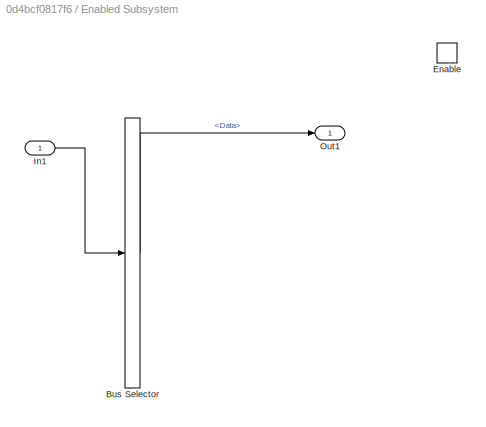
BLOCK [SubSystem] Enabled Subsystem
  Ports = [1, 1, 1]
  RequestExecContextInheritance = off
BLOCK [BusSelector] Enabled Subsystem/Bus Selector
  DialogController = Simulink.DDGSource_BusSelector
  OutputSignals = Data
  Ports = [1, 1]
BLOCK [EnablePort] Enabled Subsystem/Enable
  Ports = []
BLOCK [Inport] Enabled Subsystem/In1
  IconDisplay = Port number
BLOCK [Outport] Enabled Subsystem/Out1
  IconDisplay = Signal name
BLOCK [Concatenate] Matrix Concatenate
  ConcatenateDimension = 2
  Mode = Multidimensional array
  NumInputs = 4
  Ports = [4, 1]
BLOCK [Concatenate] Matrix Concatenate1
  ConcatenateDimension = 2
  Mode = Multidimensional array
  NumInputs = 9
  Ports = [9, 1]
BLOCK [Concatenate] Matrix Concatenate2
  ConcatenateDimension = 2
  Mode = Multidimensional array
  Ports = [2, 1]
BLOCK [Reference] Publish1  REF=robotlib/Publish
  Ports = [1]
  SourceBlock = robotlib/Publish
  SourceType = ROS Publish
  messageQueueLength = 1
  messageType = my_msgs/Gps
  topic = /my_msgs/Gps
  topicSource = Specify your own
BLOCK [Reference] Publish2  REF=robotlib/Publish
  Ports = [1]
  SourceBlock = robotlib/Publish
  SourceType = ROS Publish
  messageQueueLength = 1
  messageType = my_msgs/LocalizationEstimate
  topic = /my_msgs/LocalizationEstimate
  topicSource = Specify your own
BLOCK [Reference] Publish3  REF=robotlib/Publish
  Ports = [1]
  SourceBlock = robotlib/Publish
  SourceType = ROS Publish
  messageQueueLength = 1
  messageType = my_msgs/CorrectedImu
  topic = /my_msgs/CorrectedImu
  topicSource = Specify your own
BLOCK [Reference] Publish4  REF=robotlib/Publish
  Ports = [1]
  SourceBlock = robotlib/Publish
  SourceType = ROS Publish
  messageQueueLength = 1
  messageType = sensor_msgs/PointCloud2
  topic = /sensor_msgs/PointCloud2
  topicSource = Specify your own
BLOCK [Reference] Publish5  REF=robotlib/Publish
  Ports = [1]
  SourceBlock = robotlib/Publish
  SourceType = ROS Publish
  messageQueueLength = 1
  messageType = my_msgs/Chassis
  topic = /my_msgs/Chassis
  topicSource = Specify your own
BLOCK [Reference] Publish6  REF=robotlib/Publish
  Ports = [1]
  SourceBlock = robotlib/Publish
  SourceType = ROS Publish
  messageQueueLength = 1
  messageType = my_msgs/ContiRadar
  topic = /my_msgs/ContiRadar
  topicSource = Specify your own
BLOCK [Reference] Publish7  REF=robotlib/Publish
  Ports = [1]
  SourceBlock = robotlib/Publish
  SourceType = ROS Publish
  messageQueueLength = 1
  messageType = my_msgs/RoutingRequest
  topic = /my_msgs/RoutingRequest
  topicSource = Specify your own
BLOCK [Reference] Publish8  REF=robotlib/Publish
  Ports = [1]
  SourceBlock = robotlib/Publish
  SourceType = ROS Publish
  messageQueueLength = 1
  messageType = my_msgs/PerceptionObstacles
  topic = /my_msgs/PerceptionObstacles
  topicSource = Specify your own
BLOCK [Scope] Scope
  DataFormat = StructureWithTime
  Decimation = 1
  Floating = off
  Grid = on
  LimitDataPoints = off
  MaxDataPoints = 5000
  NumInputPorts = 1
  Ports = [1]
  SampleInput = off
  SampleTime = -1
  SaveName = ScopeData
  SaveToWorkspace = off
  ShowLegends = off
  TickLabels = OneTimeTick
  TimeRange = auto
  YMax = 286.875
  YMin = -31.875
  ZoomMode = on
BLOCK [SubSystem] String Constant1
  Description = Replaced Block
  Ports = [0, 1]
  RequestExecContextInheritance = off
BLOCK [Ground] String Constant1/Ground1
BLOCK [Outport] String Constant1/Out1
  IconDisplay = Port number
BLOCK [SubSystem] String Constant2
  Description = Replaced Block
  Ports = [0, 1]
  RequestExecContextInheritance = off
BLOCK [Ground] String Constant2/Ground1
BLOCK [Outport] String Constant2/Out1
  IconDisplay = Port number
BLOCK [SubSystem] String Constant3
  Description = Replaced Block
  Ports = [0, 1]
  RequestExecContextInheritance = off
BLOCK [Ground] String Constant3/Ground1
BLOCK [Outport] String Constant3/Out1
  IconDisplay = Port number
BLOCK [SubSystem] String Constant4
  Description = Replaced Block
  Ports = [0, 1]
  RequestExecContextInheritance = off
BLOCK [Ground] String Constant4/Ground1
BLOCK [Outport] String Constant4/Out1
  IconDisplay = Port number
BLOCK [SubSystem] String Constant5
  Description = Replaced Block
  Ports = [0, 1]
  RequestExecContextInheritance = off
BLOCK [Ground] String Constant5/Ground1
BLOCK [Outport] String Constant5/Out1
  IconDisplay = Port number
BLOCK [SubSystem] String Constant6
  Description = Replaced Block
  Ports = [0, 1]
  RequestExecContextInheritance = off
BLOCK [Ground] String Constant6/Ground1
BLOCK [Outport] String Constant6/Out1
  IconDisplay = Port number
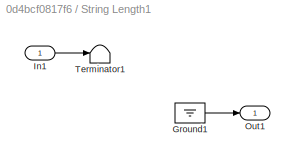
BLOCK [SubSystem] String Length1
  Description = Replaced Block
  Ports = [1, 1]
  RequestExecContextInheritance = off
BLOCK [Ground] String Length1/Ground1
BLOCK [Inport] String Length1/In1
  IconDisplay = Port number
BLOCK [Outport] String Length1/Out1
  IconDisplay = Port number
BLOCK [Terminator] String Length1/Terminator1
BLOCK [SubSystem] String Length2
  Description = Replaced Block
  Ports = [1, 1]
  RequestExecContextInheritance = off
BLOCK [Ground] String Length2/Ground1
BLOCK [Inport] String Length2/In1
  IconDisplay = Port number
BLOCK [Outport] String Length2/Out1
  IconDisplay = Port number
BLOCK [Terminator] String Length2/Terminator1
BLOCK [SubSystem] String Length3
  Description = Replaced Block
  Ports = [1, 1]
  RequestExecContextInheritance = off
BLOCK [Ground] String Length3/Ground1
BLOCK [Inport] String Length3/In1
  IconDisplay = Port number
BLOCK [Outport] String Length3/Out1
  IconDisplay = Port number
BLOCK [Terminator] String Length3/Terminator1
BLOCK [SubSystem] String Length4
  Description = Replaced Block
  Ports = [1, 1]
  RequestExecContextInheritance = off
BLOCK [Ground] String Length4/Ground1
BLOCK [Inport] String Length4/In1
  IconDisplay = Port number
BLOCK [Outport] String Length4/Out1
  IconDisplay = Port number
BLOCK [Terminator] String Length4/Terminator1
BLOCK [SubSystem] String Length5
  Description = Replaced Block
  Ports = [1, 1]
  RequestExecContextInheritance = off
BLOCK [Ground] String Length5/Ground1
BLOCK [Inport] String Length5/In1
  IconDisplay = Port number
BLOCK [Outport] String Length5/Out1
  IconDisplay = Port number
BLOCK [Terminator] String Length5/Terminator1
BLOCK [SubSystem] String Length6
  Description = Replaced Block
  Ports = [1, 1]
  RequestExecContextInheritance = off
BLOCK [Ground] String Length6/Ground1
BLOCK [Inport] String Length6/In1
  IconDisplay = Port number
BLOCK [Outport] String Length6/Out1
  IconDisplay = Port number
BLOCK [Terminator] String Length6/Terminator1
BLOCK [SubSystem] String to ASCII1
  Description = Replaced Block
  Ports = [1, 1]
  RequestExecContextInheritance = off
BLOCK [Ground] String to ASCII1/Ground1
BLOCK [Inport] String to ASCII1/In1
  IconDisplay = Port number
BLOCK [Outport] String to ASCII1/Out1
  IconDisplay = Port number
BLOCK [Terminator] String to ASCII1/Terminator1
BLOCK [SubSystem] String to ASCII2
  Description = Replaced Block
  Ports = [1, 1]
  RequestExecContextInheritance = off
BLOCK [Ground] String to ASCII2/Ground1
BLOCK [Inport] String to ASCII2/In1
  IconDisplay = Port number
BLOCK [Outport] String to ASCII2/Out1
  IconDisplay = Port number
BLOCK [Terminator] String to ASCII2/Terminator1
BLOCK [SubSystem] String to ASCII3
  Description = Replaced Block
  Ports = [1, 1]
  RequestExecContextInheritance = off
BLOCK [Ground] String to ASCII3/Ground1
BLOCK [Inport] String to ASCII3/In1
  IconDisplay = Port number
BLOCK [Outport] String to ASCII3/Out1
  IconDisplay = Port number
BLOCK [Terminator] String to ASCII3/Terminator1
BLOCK [SubSystem] String to ASCII4
  Description = Replaced Block
  Ports = [1, 1]
  RequestExecContextInheritance = off
BLOCK [Ground] String to ASCII4/Ground1
BLOCK [Inport] String to ASCII4/In1
  IconDisplay = Port number
BLOCK [Outport] String to ASCII4/Out1
  IconDisplay = Port number
BLOCK [Terminator] String to ASCII4/Terminator1
BLOCK [SubSystem] String to ASCII5
  Description = Replaced Block
  Ports = [1, 1]
  RequestExecContextInheritance = off
BLOCK [Ground] String to ASCII5/Ground1
BLOCK [Inport] String to ASCII5/In1
  IconDisplay = Port number
BLOCK [Outport] String to ASCII5/Out1
  IconDisplay = Port number
BLOCK [Terminator] String to ASCII5/Terminator1
BLOCK [SubSystem] String to ASCII6
  Description = Replaced Block
  Ports = [1, 1]
  RequestExecContextInheritance = off
BLOCK [Ground] String to ASCII6/Ground1
BLOCK [Inport] String to ASCII6/In1
  IconDisplay = Port number
BLOCK [Outport] String to ASCII6/Out1
  IconDisplay = Port number
BLOCK [Terminator] String to ASCII6/Terminator1
BLOCK [Reference] Subscribe1  REF=robotlib/Subscribe
  Ports = [0, 2]
  SourceBlock = robotlib/Subscribe
  SourceType = ROS Subscribe
  messageQueueLength = 51
  messageType = sensor_msgs/PointCloud2
  sampleTime = -1
  topic = /apollo/sensor/velodyne64/compensator/PointCloud2
  topicSource = Specify your own
ANNOTATION (root): 0
ANNOTATION (root): 11
ANNOTATION (root): 17
ANNOTATION (root): 24
ANNOTATION (root): 26
ANNOTATION (root): 30
ANNOTATION (root): 32
ANNOTATION (root): 6
LINE Blank Message10:1 -> Bus Assignment10:1
LINE Blank Message11:1 -> Bus Assignment11:1
LINE Blank Message12:1 -> Bus Assignment12:1
LINE Blank Message13:1 -> Bus Assignment13:1
LINE Blank Message14:1 -> Bus Assignment14:1
LINE Blank Message15:1 -> Bus Assignment15:1
LINE Blank Message16:1 -> Bus Assignment16:1
LINE Blank Message17:1 -> Bus Assignment17:1
LINE Blank Message18:1 -> Bus Assignment18:1
LINE Blank Message19:1 -> Bus Assignment19:1
LINE Blank Message1:1 -> Bus Assignment1:1
LINE Blank Message20:1 -> Bus Assignment20:1
LINE Blank Message21:1 -> Bus Assignment21:1
LINE Blank Message22:1 -> Bus Assignment22:1
LINE Blank Message23:1 -> Bus Assignment23:1
NET Blank Message24:1 -> Bus Assignment24:1, Bus Assignment25:1, Bus Assignment26:1
LINE Blank Message25:1 -> Bus Assignment27:1
LINE Blank Message2:1 -> Bus Assignment2:1
LINE Blank Message3:1 -> Bus Assignment3:1
LINE Blank Message4:1 -> Bus Assignment4:1
LINE Blank Message5:1 -> Bus Assignment5:1
LINE Blank Message6:1 -> Bus Assignment6:1
LINE Blank Message7:1 -> Bus Assignment7:1
LINE Blank Message8:1 -> Bus Assignment8:1
LINE Blank Message9:1 -> Bus Assignment9:1
LINE Blank Message:1 -> Bus Assignment:1
LINE Bus Assignment10:1 -> Matrix Concatenate1:7
LINE Bus Assignment11:1 -> Matrix Concatenate1:8
LINE Bus Assignment12:1 -> Matrix Concatenate1:5
LINE Bus Assignment13:1 -> Matrix Concatenate1:6
LINE Bus Assignment14:1 -> Matrix Concatenate1:3
LINE Bus Assignment15:1 -> Matrix Concatenate1:4
LINE Bus Assignment16:1 -> Matrix Concatenate1:1
LINE Bus Assignment17:1 -> Matrix Concatenate1:2
LINE Bus Assignment18:1 -> Matrix Concatenate1:9
LINE Bus Assignment19:1 -> Publish7:1
LINE Bus Assignment1:1 -> Publish2:1
LINE Bus Assignment20:1 -> Matrix Concatenate2:1
LINE Bus Assignment21:1 -> Matrix Concatenate2:2
LINE Bus Assignment22:1 -> Bus Assignment27:3
LINE Bus Assignment23:1 -> Bus Assignment27:2
LINE Bus Assignment24:1 -> Bus Assignment23:3
LINE Bus Assignment25:1 -> Bus Assignment23:5
LINE Bus Assignment26:1 -> Bus Assignment23:9
LINE Bus Assignment27:1 -> Publish8:1
LINE Bus Assignment2:1 -> Publish3:1
LINE Bus Assignment3:1 -> Publish4:1
LINE Bus Assignment4:1 -> Matrix Concatenate:1
LINE Bus Assignment5:1 -> Matrix Concatenate:2
LINE Bus Assignment6:1 -> Matrix Concatenate:3
LINE Bus Assignment7:1 -> Publish5:1
LINE Bus Assignment8:1 -> Matrix Concatenate:4
LINE Bus Assignment9:1 -> Publish6:1
LINE Bus Assignment:1 -> Publish1:1
LINE Cast To Boolean1:1 -> Bus Assignment7:10
LINE Cast To Boolean2:1 -> Bus Assignment7:11
LINE Cast To Boolean3:1 -> Bus Assignment7:12
LINE Cast To Boolean4:1 -> Bus Assignment7:13
LINE Cast To Boolean5:1 -> Bus Assignment7:14
LINE Cast To Boolean6:1 -> Bus Assignment7:15
LINE Cast To Boolean7:1 -> Bus Assignment7:21
LINE Cast To Boolean8:1 -> Bus Assignment7:30
LINE Cast To Boolean9:1 -> Bus Assignment7:31
LINE Cast To Boolean:1 -> Bus Assignment7:2
LINE Constant100:1 -> Bus Assignment2:3
LINE Constant101:1 -> Bus Assignment2:4
LINE Constant102:1 -> Bus Assignment2:5
LINE Constant103:1 -> Bus Assignment2:6
LINE Constant104:1 -> Bus Assignment2:7
LINE Constant105:1 -> Bus Assignment2:8
LINE Constant106:1 -> Bus Assignment2:9
LINE Constant107:1 -> Bus Assignment9:2
LINE Constant108:1 -> Bus Assignment2:10
LINE Constant109:1 -> Bus Assignment2:11
LINE Constant10:1 -> Bus Assignment:12
LINE Constant110:1 -> Bus Assignment2:12
LINE Constant111:1 -> Data Type Conversion31:1
LINE Constant112:1 -> Data Type Conversion32:1
LINE Constant113:1 -> Data Type Conversion87:1
LINE Constant114:1 -> Data Type Conversion88:1
LINE Constant115:1 -> Data Type Conversion89:1
LINE Constant116:1 -> Bus Assignment10:2
LINE Constant117:1 -> Data Type Conversion43:1
LINE Constant118:1 -> Bus Assignment10:6
LINE Constant119:1 -> Data Type Conversion33:1
LINE Constant11:1 -> Bus Assignment:13
LINE Constant120:1 -> Data Type Conversion81:1
LINE Constant121:1 -> Bus Assignment10:7
LINE Constant122:1 -> Bus Assignment10:9
LINE Constant123:1 -> Bus Assignment10:8
LINE Constant124:1 -> Bus Assignment10:10
LINE Constant125:1 -> Bus Assignment10:12
LINE Constant126:1 -> Data Type Conversion60:1
LINE Constant127:1 -> Bus Assignment10:13
LINE Constant128:1 -> Bus Assignment10:15
LINE Constant129:1 -> Bus Assignment10:14
LINE Constant12:1 -> Bus Assignment:14
LINE Constant130:1 -> Bus Assignment10:16
LINE Constant131:1 -> Bus Assignment10:18
LINE Constant132:1 -> Data Type Conversion62:1
LINE Constant133:1 -> Bus Assignment10:19
LINE Constant134:1 -> Bus Assignment10:21
LINE Constant135:1 -> Bus Assignment10:20
LINE Constant136:1 -> Bus Assignment10:22
LINE Constant137:1 -> Bus Assignment10:24
LINE Constant138:1 -> Bus Assignment10:23
LINE Constant139:1 -> Bus Assignment10:25
LINE Constant13:1 -> Bus Assignment1:2
LINE Constant140:1 -> Data Type Conversion63:1
LINE Constant141:1 -> Bus Assignment11:2
LINE Constant142:1 -> Data Type Conversion44:1
LINE Constant143:1 -> Bus Assignment11:6
LINE Constant144:1 -> Data Type Conversion34:1
LINE Constant145:1 -> Data Type Conversion85:1
LINE Constant146:1 -> Bus Assignment11:7
LINE Constant147:1 -> Bus Assignment11:9
LINE Constant148:1 -> Bus Assignment11:8
LINE Constant149:1 -> Bus Assignment11:10
LINE Constant14:1 -> Data Type Conversion1:1
LINE Constant150:1 -> Bus Assignment11:12
LINE Constant151:1 -> Data Type Conversion64:1
LINE Constant152:1 -> Bus Assignment11:13
LINE Constant153:1 -> Bus Assignment11:15
LINE Constant154:1 -> Bus Assignment11:14
LINE Constant155:1 -> Bus Assignment11:16
LINE Constant156:1 -> Bus Assignment11:18
LINE Constant157:1 -> Data Type Conversion53:1
LINE Constant158:1 -> Bus Assignment11:19
LINE Constant159:1 -> Bus Assignment11:21
LINE Constant15:1 -> Bus Assignment1:13
LINE Constant160:1 -> Bus Assignment11:20
LINE Constant161:1 -> Bus Assignment11:22
LINE Constant162:1 -> Bus Assignment11:24
LINE Constant163:1 -> Bus Assignment11:23
LINE Constant164:1 -> Bus Assignment11:25
LINE Constant165:1 -> Data Type Conversion54:1
LINE Constant166:1 -> Bus Assignment12:2
LINE Constant167:1 -> Data Type Conversion45:1
LINE Constant168:1 -> Bus Assignment12:6
LINE Constant169:1 -> Data Type Conversion35:1
LINE Constant16:1 -> Bus Assignment1:14
LINE Constant170:1 -> Data Type Conversion82:1
LINE Constant171:1 -> Bus Assignment12:7
LINE Constant172:1 -> Bus Assignment12:9
LINE Constant173:1 -> Bus Assignment12:8
LINE Constant174:1 -> Bus Assignment12:10
LINE Constant175:1 -> Bus Assignment12:12
LINE Constant176:1 -> Data Type Conversion59:1
LINE Constant177:1 -> Bus Assignment12:13
LINE Constant178:1 -> Bus Assignment12:15
LINE Constant179:1 -> Bus Assignment12:14
LINE Constant17:1 -> Bus Assignment1:15
LINE Constant180:1 -> Bus Assignment12:16
LINE Constant181:1 -> Bus Assignment12:18
LINE Constant182:1 -> Data Type Conversion58:1
LINE Constant183:1 -> Bus Assignment12:19
LINE Constant184:1 -> Bus Assignment12:21
LINE Constant185:1 -> Bus Assignment12:20
LINE Constant186:1 -> Bus Assignment12:22
LINE Constant187:1 -> Bus Assignment12:24
LINE Constant188:1 -> Bus Assignment12:23
LINE Constant189:1 -> Bus Assignment12:25
LINE Constant18:1 -> Bus Assignment1:4
LINE Constant190:1 -> Data Type Conversion57:1
LINE Constant191:1 -> Bus Assignment13:2
LINE Constant192:1 -> Data Type Conversion48:1
LINE Constant193:1 -> Bus Assignment13:6
LINE Constant194:1 -> Data Type Conversion36:1
LINE Constant195:1 -> Data Type Conversion84:1
LINE Constant196:1 -> Bus Assignment13:7
LINE Constant197:1 -> Bus Assignment13:9
LINE Constant198:1 -> Bus Assignment13:8
LINE Constant199:1 -> Bus Assignment13:10
LINE Constant19:1 -> Bus Assignment1:5
LINE Constant1:1 -> Data Type Conversion:1
LINE Constant200:1 -> Bus Assignment13:12
LINE Constant201:1 -> Data Type Conversion65:1
LINE Constant202:1 -> Bus Assignment13:13
LINE Constant203:1 -> Bus Assignment13:15
LINE Constant204:1 -> Bus Assignment13:14
LINE Constant205:1 -> Bus Assignment13:16
LINE Constant206:1 -> Bus Assignment13:18
LINE Constant207:1 -> Data Type Conversion56:1
LINE Constant208:1 -> Bus Assignment13:19
LINE Constant209:1 -> Bus Assignment13:21
LINE Constant20:1 -> Bus Assignment1:6
LINE Constant210:1 -> Bus Assignment13:20
LINE Constant211:1 -> Bus Assignment13:22
LINE Constant212:1 -> Bus Assignment13:24
LINE Constant213:1 -> Bus Assignment13:23
LINE Constant214:1 -> Bus Assignment13:25
LINE Constant215:1 -> Data Type Conversion55:1
LINE Constant216:1 -> Bus Assignment14:2
LINE Constant217:1 -> Data Type Conversion46:1
LINE Constant218:1 -> Bus Assignment14:6
LINE Constant219:1 -> Data Type Conversion37:1
LINE Constant21:1 -> Bus Assignment1:7
LINE Constant220:1 -> Data Type Conversion72:1
LINE Constant221:1 -> Bus Assignment14:7
LINE Constant222:1 -> Bus Assignment14:9
LINE Constant223:1 -> Bus Assignment14:8
LINE Constant224:1 -> Bus Assignment14:10
LINE Constant225:1 -> Bus Assignment14:12
LINE Constant226:1 -> Data Type Conversion71:1
LINE Constant227:1 -> Bus Assignment14:13
LINE Constant228:1 -> Bus Assignment14:15
LINE Constant229:1 -> Bus Assignment14:14
LINE Constant22:1 -> Bus Assignment1:8
LINE Constant230:1 -> Bus Assignment14:16
LINE Constant231:1 -> Bus Assignment14:18
LINE Constant232:1 -> Data Type Conversion70:1
LINE Constant233:1 -> Bus Assignment14:19
LINE Constant234:1 -> Bus Assignment14:21
LINE Constant235:1 -> Bus Assignment14:20
LINE Constant236:1 -> Bus Assignment14:22
LINE Constant237:1 -> Bus Assignment14:24
LINE Constant238:1 -> Bus Assignment14:23
LINE Constant239:1 -> Bus Assignment14:25
LINE Constant23:1 -> Bus Assignment1:9
LINE Constant240:1 -> Data Type Conversion69:1
LINE Constant241:1 -> Bus Assignment15:2
LINE Constant242:1 -> Data Type Conversion47:1
LINE Constant243:1 -> Bus Assignment15:6
LINE Constant244:1 -> Data Type Conversion38:1
LINE Constant245:1 -> Data Type Conversion86:1
LINE Constant246:1 -> Bus Assignment15:7
LINE Constant247:1 -> Bus Assignment15:9
LINE Constant248:1 -> Bus Assignment15:8
LINE Constant249:1 -> Bus Assignment15:10
LINE Constant24:1 -> Bus Assignment1:11
LINE Constant250:1 -> Bus Assignment15:12
LINE Constant251:1 -> Data Type Conversion68:1
LINE Constant252:1 -> Bus Assignment15:13
LINE Constant253:1 -> Bus Assignment15:15
LINE Constant254:1 -> Bus Assignment15:14
LINE Constant255:1 -> Bus Assignment15:16
LINE Constant256:1 -> Bus Assignment15:18
LINE Constant257:1 -> Data Type Conversion67:1
LINE Constant258:1 -> Bus Assignment15:19
LINE Constant259:1 -> Bus Assignment15:21
LINE Constant25:1 -> Bus Assignment1:12
LINE Constant260:1 -> Bus Assignment15:20
LINE Constant261:1 -> Bus Assignment15:22
LINE Constant262:1 -> Bus Assignment15:24
LINE Constant263:1 -> Bus Assignment15:23
LINE Constant264:1 -> Bus Assignment15:25
LINE Constant265:1 -> Data Type Conversion66:1
LINE Constant266:1 -> Bus Assignment16:2
LINE Constant267:1 -> Data Type Conversion52:1
LINE Constant268:1 -> Bus Assignment16:6
LINE Constant269:1 -> Data Type Conversion40:1
LINE Constant26:1 -> Bus Assignment1:16
LINE Constant270:1 -> Data Type Conversion80:1
LINE Constant271:1 -> Bus Assignment16:7
LINE Constant272:1 -> Bus Assignment16:9
LINE Constant273:1 -> Bus Assignment16:8
LINE Constant274:1 -> Bus Assignment16:10
LINE Constant275:1 -> Bus Assignment16:12
LINE Constant276:1 -> Data Type Conversion79:1
LINE Constant277:1 -> Bus Assignment16:13
LINE Constant278:1 -> Bus Assignment16:15
LINE Constant279:1 -> Bus Assignment16:14
LINE Constant27:1 -> Bus Assignment1:17
LINE Constant280:1 -> Bus Assignment16:16
LINE Constant281:1 -> Bus Assignment16:18
LINE Constant282:1 -> Data Type Conversion78:1
LINE Constant283:1 -> Bus Assignment16:19
LINE Constant284:1 -> Bus Assignment16:21
LINE Constant285:1 -> Bus Assignment16:20
LINE Constant286:1 -> Bus Assignment16:22
LINE Constant287:1 -> Bus Assignment16:24
LINE Constant288:1 -> Bus Assignment16:23
LINE Constant289:1 -> Bus Assignment16:25
LINE Constant28:1 -> Bus Assignment1:18
LINE Constant290:1 -> Data Type Conversion77:1
LINE Constant291:1 -> Bus Assignment17:2
LINE Constant292:1 -> Data Type Conversion51:1
LINE Constant293:1 -> Bus Assignment17:6
LINE Constant294:1 -> Data Type Conversion41:1
LINE Constant295:1 -> Data Type Conversion75:1
LINE Constant296:1 -> Bus Assignment17:7
LINE Constant297:1 -> Bus Assignment17:9
LINE Constant298:1 -> Bus Assignment17:8
LINE Constant299:1 -> Bus Assignment17:10
LINE Constant29:1 -> Bus Assignment1:19
LINE Constant2:1 -> Bus Assignment:4
LINE Constant300:1 -> Bus Assignment17:12
LINE Constant301:1 -> Data Type Conversion76:1
LINE Constant302:1 -> Bus Assignment17:13
LINE Constant303:1 -> Bus Assignment17:15
LINE Constant304:1 -> Bus Assignment17:14
LINE Constant305:1 -> Bus Assignment17:16
LINE Constant306:1 -> Bus Assignment17:18
LINE Constant307:1 -> Data Type Conversion74:1
LINE Constant308:1 -> Bus Assignment17:19
LINE Constant309:1 -> Bus Assignment17:21
LINE Constant30:1 -> Bus Assignment1:20
LINE Constant310:1 -> Bus Assignment17:20
LINE Constant311:1 -> Bus Assignment17:22
LINE Constant312:1 -> Bus Assignment17:24
LINE Constant313:1 -> Bus Assignment17:23
LINE Constant314:1 -> Bus Assignment17:25
LINE Constant315:1 -> Data Type Conversion73:1
LINE Constant316:1 -> Bus Assignment18:2
LINE Constant317:1 -> Data Type Conversion42:1
LINE Constant318:1 -> Bus Assignment18:6
LINE Constant319:1 -> Data Type Conversion39:1
LINE Constant31:1 -> Bus Assignment1:21
LINE Constant320:1 -> Data Type Conversion83:1
LINE Constant321:1 -> Bus Assignment18:7
LINE Constant322:1 -> Bus Assignment18:9
LINE Constant323:1 -> Bus Assignment18:8
LINE Constant324:1 -> Bus Assignment18:10
LINE Constant325:1 -> Bus Assignment18:12
LINE Constant326:1 -> Data Type Conversion61:1
LINE Constant327:1 -> Bus Assignment18:13
LINE Constant328:1 -> Bus Assignment18:15
LINE Constant329:1 -> Bus Assignment18:14
LINE Constant32:1 -> Bus Assignment1:22
LINE Constant330:1 -> Bus Assignment18:16
LINE Constant331:1 -> Bus Assignment18:18
LINE Constant332:1 -> Data Type Conversion50:1
LINE Constant333:1 -> Bus Assignment18:19
LINE Constant334:1 -> Bus Assignment18:21
LINE Constant335:1 -> Bus Assignment18:20
LINE Constant336:1 -> Bus Assignment18:22
LINE Constant337:1 -> Bus Assignment18:24
LINE Constant338:1 -> Bus Assignment18:23
LINE Constant339:1 -> Bus Assignment18:25
LINE Constant33:1 -> Bus Assignment1:10
LINE Constant340:1 -> Data Type Conversion49:1
LINE Constant341:1 -> Bus Assignment19:2
LINE Constant342:1 -> Data Type Conversion90:1
LINE Constant343:1 -> Bus Assignment20:4
LINE Constant344:1 -> Bus Assignment20:5
LINE Constant345:1 -> Bus Assignment20:6
LINE Constant346:1 -> Bus Assignment21:4
LINE Constant347:1 -> Bus Assignment21:5
LINE Constant348:1 -> Bus Assignment21:6
LINE Constant349:1 -> Data Type Conversion91:1
LINE Constant34:1 -> Bus Assignment1:23
NET Constant350:1 -> Bus Assignment26:2, Bus Assignment26:3, Bus Assignment26:4
LINE Constant351:1 -> Data Type Conversion94:1
LINE Constant352:1 -> Data Type Conversion95:1
LINE Constant353:1 -> Bus Assignment23:13
LINE Constant354:1 -> Bus Assignment23:10
LINE Constant355:1 -> Data Type Conversion98:1
LINE Constant356:1 -> Bus Assignment23:12
LINE Constant357:1 -> Data Type Conversion96:1
LINE Constant358:1 -> Data Type Conversion97:1
LINE Constant359:1 -> Data Type Conversion99:1
LINE Constant35:1 -> Bus Assignment1:24
LINE Constant360:1 -> Data Type Conversion92:1
LINE Constant361:1 -> Data Type Conversion93:1
NET Constant362:1 -> Bus Assignment25:2, Bus Assignment25:3, Bus Assignment25:4
LINE Constant363:1 -> Bus Assignment23:4
NET Constant364:1 -> Bus Assignment24:2, Bus Assignment24:3, Bus Assignment24:4
LINE Constant365:1 -> Bus Assignment23:6
LINE Constant366:1 -> Bus Assignment23:7
LINE Constant367:1 -> Bus Assignment23:8
LINE Constant36:1 -> Bus Assignment1:25
LINE Constant37:1 -> Bus Assignment1:26
LINE Constant38:1 -> Bus Assignment1:27
LINE Constant39:1 -> Bus Assignment1:28
LINE Constant3:1 -> Bus Assignment:5
LINE Constant40:1 -> Bus Assignment1:29
LINE Constant41:1 -> Bus Assignment1:30
LINE Constant42:1 -> Cast To Boolean:1
LINE Constant43:1 -> Cast To Boolean1:1
LINE Constant44:1 -> Data Type Conversion4:1
LINE Constant45:1 -> Cast To Boolean2:1
LINE Constant46:1 -> Cast To Boolean3:1
LINE Constant47:1 -> Bus Assignment3:3
LINE Constant48:1 -> Bus Assignment3:4
LINE Constant49:1 -> Data Type Conversion5:1
LINE Constant4:1 -> Bus Assignment:6
LINE Constant50:1 -> Data Type Conversion6:1
LINE Constant51:1 -> Data Type Conversion14:1
LINE Constant52:1 -> Data Type Conversion12:1
LINE Constant53:1 -> Data Type Conversion13:1
LINE Constant54:1 -> Data Type Conversion7:1
LINE Constant55:1 -> Cast To Boolean4:1
LINE Constant56:1 -> Cast To Boolean5:1
LINE Constant57:1 -> Cast To Boolean6:1
LINE Constant58:1 -> Data Type Conversion8:1
LINE Constant59:1 -> Data Type Conversion15:1
LINE Constant5:1 -> Bus Assignment:7
LINE Constant60:1 -> Data Type Conversion16:1
LINE Constant61:1 -> Data Type Conversion19:1
LINE Constant62:1 -> Data Type Conversion17:1
LINE Constant63:1 -> Data Type Conversion9:1
LINE Constant64:1 -> Data Type Conversion10:1
LINE Constant65:1 -> Data Type Conversion11:1
LINE Constant66:1 -> Data Type Conversion18:1
LINE Constant67:1 -> Bus Assignment7:3
LINE Constant68:1 -> Bus Assignment7:4
LINE Constant69:1 -> Bus Assignment7:5
LINE Constant6:1 -> Bus Assignment:8
LINE Constant70:1 -> Data Type Conversion2:1
LINE Constant71:1 -> Bus Assignment7:7
LINE Constant72:1 -> Bus Assignment7:8
LINE Constant73:1 -> Bus Assignment7:9
LINE Constant74:1 -> Data Type Conversion27:1
LINE Constant75:1 -> Data Type Conversion25:1
LINE Constant76:1 -> Data Type Conversion26:1
LINE Constant77:1 -> Bus Assignment7:19
LINE Constant78:1 -> Bus Assignment7:20
LINE Constant79:1 -> Cast To Boolean7:1
LINE Constant7:1 -> Bus Assignment:9
LINE Constant80:1 -> Data Type Conversion3:1
LINE Constant81:1 -> Bus Assignment7:17
LINE Constant82:1 -> Data Type Conversion20:1
LINE Constant83:1 -> Data Type Conversion21:1
LINE Constant84:1 -> Data Type Conversion22:1
LINE Constant85:1 -> Data Type Conversion23:1
LINE Constant86:1 -> Data Type Conversion24:1
LINE Constant87:1 -> Data Type Conversion28:1
LINE Constant88:1 -> Data Type Conversion29:1
LINE Constant89:1 -> Bus Assignment7:28
LINE Constant8:1 -> Bus Assignment:10
LINE Constant90:1 -> Bus Assignment7:29
LINE Constant91:1 -> Cast To Boolean8:1
LINE Constant92:1 -> Bus Assignment7:32
LINE Constant93:1 -> Bus Assignment7:33
LINE Constant94:1 -> Bus Assignment7:34
LINE Constant95:1 -> Bus Assignment7:35
LINE Constant96:1 -> Data Type Conversion30:1
LINE Constant97:1 -> Bus Assignment7:37
LINE Constant98:1 -> Cast To Boolean9:1
LINE Constant99:1 -> Bus Assignment2:2
LINE Constant9:1 -> Bus Assignment:11
LINE Constant:1 -> Bus Assignment:2
LINE Data Type Conversion10:1 -> Bus Assignment4:5
LINE Data Type Conversion11:1 -> Bus Assignment4:6
LINE Data Type Conversion12:1 -> Bus Assignment5:5
LINE Data Type Conversion13:1 -> Bus Assignment5:6
LINE Data Type Conversion14:1 -> Bus Assignment5:4
LINE Data Type Conversion15:1 -> Bus Assignment3:10
LINE Data Type Conversion16:1 -> Bus Assignment3:11
LINE Data Type Conversion17:1 -> Bus Assignment6:5
LINE Data Type Conversion18:1 -> Bus Assignment6:6
LINE Data Type Conversion19:1 -> Bus Assignment6:4
LINE Data Type Conversion1:1 -> Bus Assignment1:3
LINE Data Type Conversion20:1 -> Bus Assignment7:18
LINE Data Type Conversion21:1 -> Bus Assignment7:22
LINE Data Type Conversion22:1 -> Bus Assignment7:23
LINE Data Type Conversion23:1 -> Bus Assignment7:24
LINE Data Type Conversion24:1 -> Bus Assignment7:25
LINE Data Type Conversion25:1 -> Bus Assignment8:6
LINE Data Type Conversion26:1 -> Bus Assignment8:7
LINE Data Type Conversion27:1 -> Bus Assignment8:5
LINE Data Type Conversion28:1 -> Bus Assignment7:26
LINE Data Type Conversion29:1 -> Bus Assignment7:27
LINE Data Type Conversion2:1 -> Bus Assignment7:6
LINE Data Type Conversion30:1 -> Bus Assignment7:36
LINE Data Type Conversion31:1 -> Bus Assignment9:3
NET Data Type Conversion32:1 -> Bus Assignment9:5, Bus Assignment9:6
LINE Data Type Conversion33:1 -> Bus Assignment10:4
LINE Data Type Conversion34:1 -> Bus Assignment11:4
LINE Data Type Conversion35:1 -> Bus Assignment12:4
LINE Data Type Conversion36:1 -> Bus Assignment13:4
LINE Data Type Conversion37:1 -> Bus Assignment14:4
LINE Data Type Conversion38:1 -> Bus Assignment15:4
LINE Data Type Conversion39:1 -> Bus Assignment18:4
LINE Data Type Conversion3:1 -> Bus Assignment7:16
LINE Data Type Conversion40:1 -> Bus Assignment16:4
LINE Data Type Conversion41:1 -> Bus Assignment17:4
LINE Data Type Conversion42:1 -> Bus Assignment18:3
LINE Data Type Conversion43:1 -> Bus Assignment10:3
LINE Data Type Conversion44:1 -> Bus Assignment11:3
LINE Data Type Conversion45:1 -> Bus Assignment12:3
LINE Data Type Conversion46:1 -> Bus Assignment14:3
LINE Data Type Conversion47:1 -> Bus Assignment15:3
LINE Data Type Conversion48:1 -> Bus Assignment13:3
LINE Data Type Conversion49:1 -> Bus Assignment18:26
LINE Data Type Conversion4:1 -> Bus Assignment3:2
LINE Data Type Conversion50:1 -> Bus Assignment18:17
LINE Data Type Conversion51:1 -> Bus Assignment17:3
LINE Data Type Conversion52:1 -> Bus Assignment16:3
LINE Data Type Conversion53:1 -> Bus Assignment11:17
LINE Data Type Conversion54:1 -> Bus Assignment11:26
LINE Data Type Conversion55:1 -> Bus Assignment13:26
LINE Data Type Conversion56:1 -> Bus Assignment13:17
LINE Data Type Conversion57:1 -> Bus Assignment12:26
LINE Data Type Conversion58:1 -> Bus Assignment12:17
LINE Data Type Conversion59:1 -> Bus Assignment12:11
LINE Data Type Conversion5:1 -> Bus Assignment3:5
LINE Data Type Conversion60:1 -> Bus Assignment10:11
LINE Data Type Conversion61:1 -> Bus Assignment18:11
LINE Data Type Conversion62:1 -> Bus Assignment10:17
LINE Data Type Conversion63:1 -> Bus Assignment10:26
LINE Data Type Conversion64:1 -> Bus Assignment11:11
LINE Data Type Conversion65:1 -> Bus Assignment13:11
LINE Data Type Conversion66:1 -> Bus Assignment15:26
LINE Data Type Conversion67:1 -> Bus Assignment15:17
LINE Data Type Conversion68:1 -> Bus Assignment15:11
LINE Data Type Conversion69:1 -> Bus Assignment14:26
LINE Data Type Conversion6:1 -> Bus Assignment3:6
LINE Data Type Conversion70:1 -> Bus Assignment14:17
LINE Data Type Conversion71:1 -> Bus Assignment14:11
LINE Data Type Conversion72:1 -> Bus Assignment14:5
LINE Data Type Conversion73:1 -> Bus Assignment17:26
LINE Data Type Conversion74:1 -> Bus Assignment17:17
LINE Data Type Conversion75:1 -> Bus Assignment17:5
LINE Data Type Conversion76:1 -> Bus Assignment17:11
LINE Data Type Conversion77:1 -> Bus Assignment16:26
LINE Data Type Conversion78:1 -> Bus Assignment16:17
LINE Data Type Conversion79:1 -> Bus Assignment16:11
LINE Data Type Conversion7:1 -> Bus Assignment3:7
LINE Data Type Conversion80:1 -> Bus Assignment16:5
LINE Data Type Conversion81:1 -> Bus Assignment10:5
LINE Data Type Conversion82:1 -> Bus Assignment12:5
LINE Data Type Conversion83:1 -> Bus Assignment18:5
LINE Data Type Conversion84:1 -> Bus Assignment13:5
LINE Data Type Conversion85:1 -> Bus Assignment11:5
LINE Data Type Conversion86:1 -> Bus Assignment15:5
LINE Data Type Conversion87:1 -> Bus Assignment9:7
LINE Data Type Conversion88:1 -> Bus Assignment9:8
LINE Data Type Conversion89:1 -> Bus Assignment9:9
LINE Data Type Conversion8:1 -> Bus Assignment3:8
LINE Data Type Conversion90:1 -> Bus Assignment19:3
LINE Data Type Conversion91:1 -> Bus Assignment22:2
LINE Data Type Conversion92:1 -> Bus Assignment22:3
NET Data Type Conversion93:1 -> Bus Assignment22:4, Bus Assignment22:5, Bus Assignment22:6
LINE Data Type Conversion94:1 -> Bus Assignment23:2
LINE Data Type Conversion95:1 -> Bus Assignment27:4
LINE Data Type Conversion96:1 -> Bus Assignment23:14
LINE Data Type Conversion97:1 -> Bus Assignment27:5
LINE Data Type Conversion98:1 -> Bus Assignment23:11
LINE Data Type Conversion99:1 -> Bus Assignment23:15
LINE Data Type Conversion9:1 -> Bus Assignment4:4
LINE Data Type Conversion:1 -> Bus Assignment:3
LINE Enabled Subsystem/Bus Selector:1 -> Enabled Subsystem/Out1:1
LINE Enabled Subsystem/In1:1 -> Enabled Subsystem/Bus Selector:1
NET Enabled Subsystem:1 -> Bus Assignment3:12, Scope:1
LINE Matrix Concatenate1:1 -> Bus Assignment9:4
LINE Matrix Concatenate2:1 -> Bus Assignment19:4
LINE Matrix Concatenate:1 -> Bus Assignment3:9
LINE String Constant1/Ground1:1 -> String Constant1/Out1:1
NET String Constant1:1 -> String Length1:1, String to ASCII2:1
LINE String Constant2/Ground1:1 -> String Constant2/Out1:1
NET String Constant2:1 -> String Length2:1, String to ASCII3:1
LINE String Constant3/Ground1:1 -> String Constant3/Out1:1
NET String Constant3:1 -> String Length3:1, String to ASCII1:1
LINE String Constant4/Ground1:1 -> String Constant4/Out1:1
NET String Constant4:1 -> String Length4:1, String to ASCII4:1
LINE String Constant5/Ground1:1 -> String Constant5/Out1:1
NET String Constant5:1 -> String Length5:1, String to ASCII5:1
LINE String Constant6/Ground1:1 -> String Constant6/Out1:1
NET String Constant6:1 -> String Length6:1, String to ASCII6:1
LINE String Length1/Ground1:1 -> String Length1/Out1:1
LINE String Length1/In1:1 -> String Length1/Terminator1:1
LINE String Length1:1 -> Bus Assignment5:3
LINE String Length2/Ground1:1 -> String Length2/Out1:1
LINE String Length2/In1:1 -> String Length2/Terminator1:1
LINE String Length2:1 -> Bus Assignment6:3
LINE String Length3/Ground1:1 -> String Length3/Out1:1
LINE String Length3/In1:1 -> String Length3/Terminator1:1
LINE String Length3:1 -> Bus Assignment4:3
LINE String Length4/Ground1:1 -> String Length4/Out1:1
LINE String Length4/In1:1 -> String Length4/Terminator1:1
NET String Length4:1 -> Bus Assignment8:3, Bus Assignment8:4
LINE String Length5/Ground1:1 -> String Length5/Out1:1
LINE String Length5/In1:1 -> String Length5/Terminator1:1
LINE String Length5:1 -> Bus Assignment20:3
LINE String Length6/Ground1:1 -> String Length6/Out1:1
LINE String Length6/In1:1 -> String Length6/Terminator1:1
LINE String Length6:1 -> Bus Assignment21:3
LINE String to ASCII1/Ground1:1 -> String to ASCII1/Out1:1
LINE String to ASCII1/In1:1 -> String to ASCII1/Terminator1:1
LINE String to ASCII1:1 -> Bus Assignment4:2
LINE String to ASCII2/Ground1:1 -> String to ASCII2/Out1:1
LINE String to ASCII2/In1:1 -> String to ASCII2/Terminator1:1
LINE String to ASCII2:1 -> Bus Assignment5:2
LINE String to ASCII3/Ground1:1 -> String to ASCII3/Out1:1
LINE String to ASCII3/In1:1 -> String to ASCII3/Terminator1:1
LINE String to ASCII3:1 -> Bus Assignment6:2
LINE String to ASCII4/Ground1:1 -> String to ASCII4/Out1:1
LINE String to ASCII4/In1:1 -> String to ASCII4/Terminator1:1
LINE String to ASCII4:1 -> Bus Assignment8:2
LINE String to ASCII5/Ground1:1 -> String to ASCII5/Out1:1
LINE String to ASCII5/In1:1 -> String to ASCII5/Terminator1:1
LINE String to ASCII5:1 -> Bus Assignment20:2
LINE String to ASCII6/Ground1:1 -> String to ASCII6/Out1:1
LINE String to ASCII6/In1:1 -> String to ASCII6/Terminator1:1
LINE String to ASCII6:1 -> Bus Assignment21:2
LINE Subscribe1:1 -> Enabled Subsystem:enable
LINE Subscribe1:2 -> Enabled Subsystem:1
note: NET lines group one-source signal fan-out (src -> all destinations, sorted); 1:1 wires keep LINE
